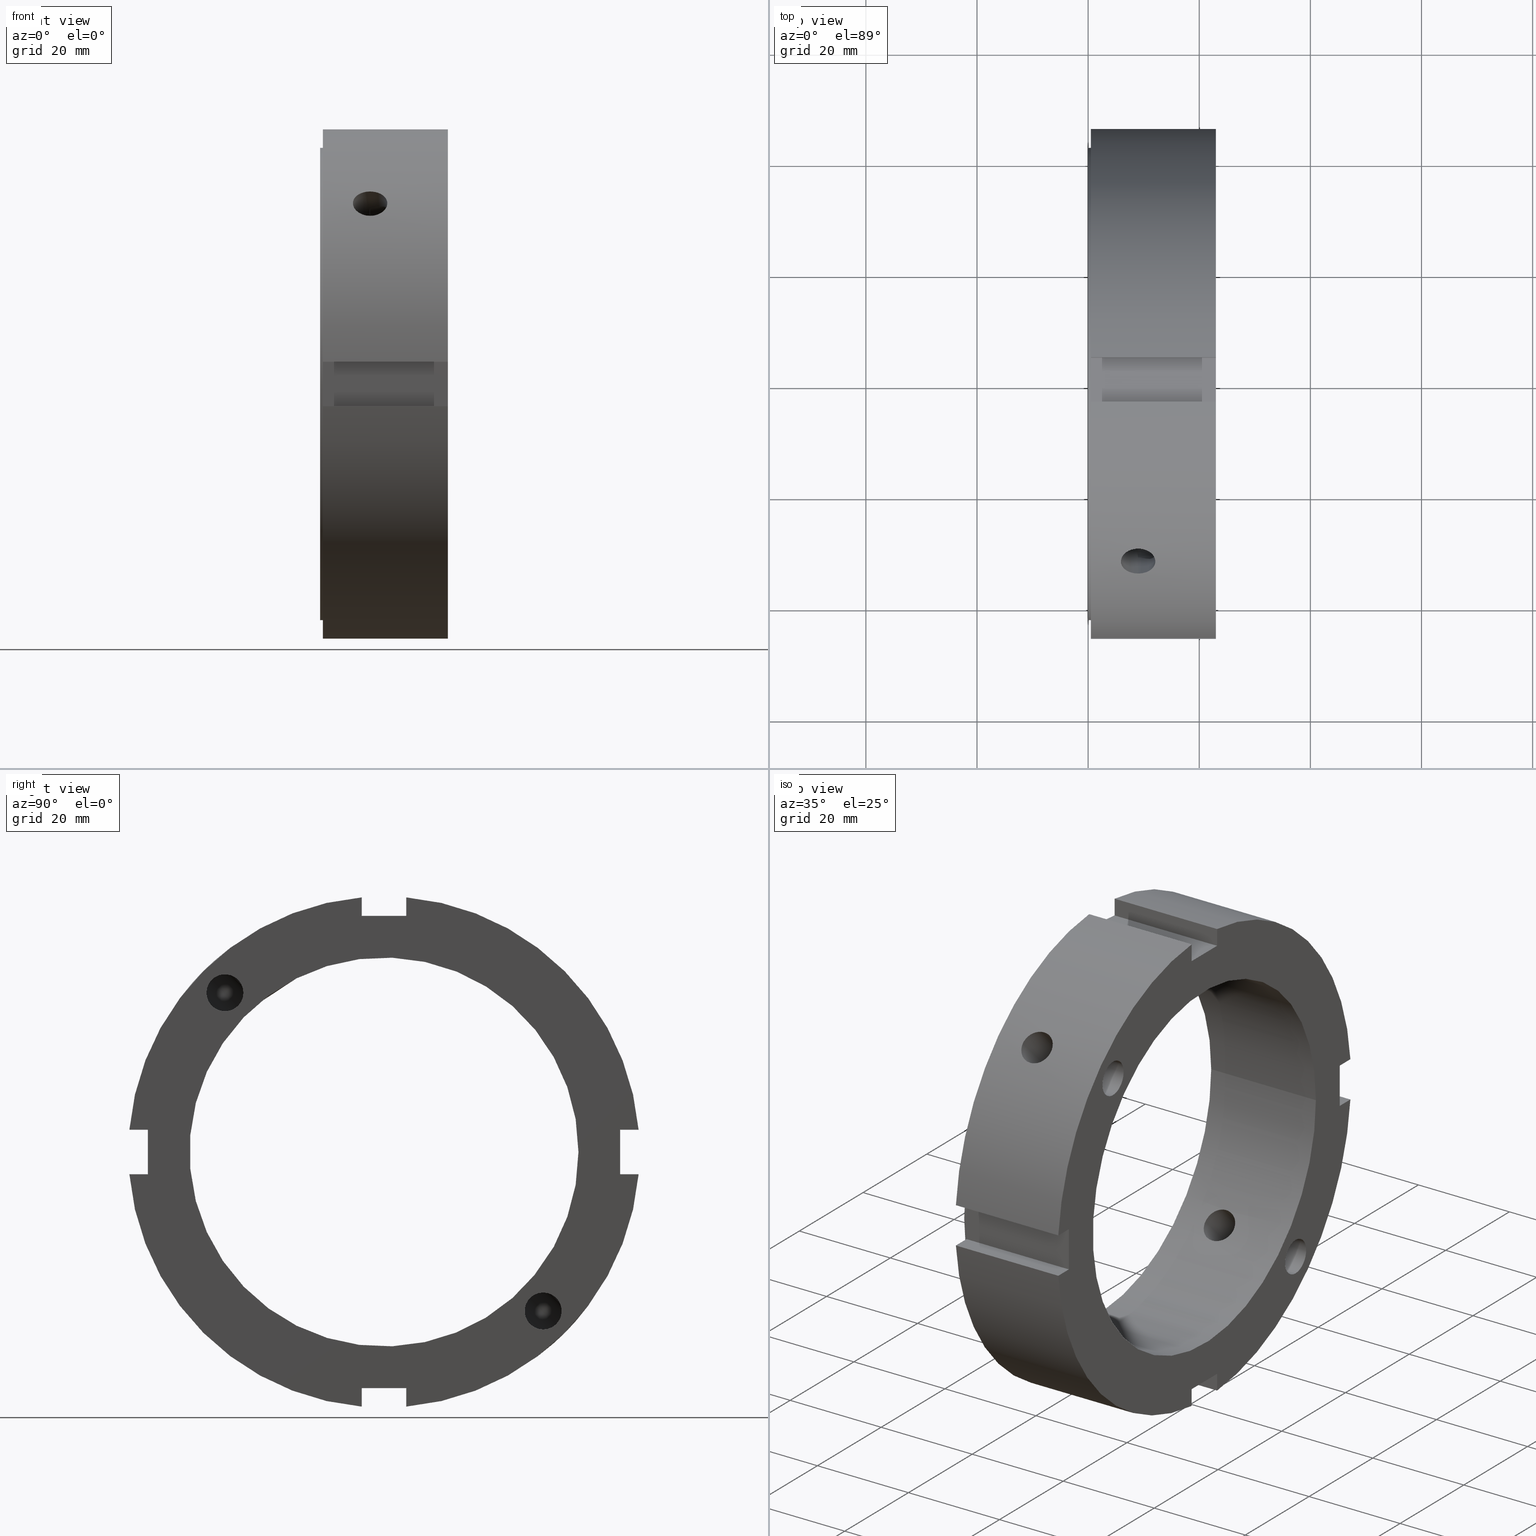
[diagram: canonical four-view strip — front | top / right | iso, engineering-drawing reading convention]
A machine part, canonical four-view strip (front | top / right | iso — engineering-drawing reading convention). The complete STEP part file that produces these views, byte-faithful:
ISO-10303-21;
HEADER;
/****************************************************************
 * Generated by software with PDElib inside                    *
 * PDElib Version v51a, created Wed 11/30/2011                  *
 * ITI Transcendata (http://www.transcendata.com/)              *
 ****************************************************************/
FILE_DESCRIPTION((''),'2;1');
FILE_NAME('C:\\Users\\sugidesign\\Documents\\Fukuda\\3Ddata\\ZMVtype\\FKD ZMV70.stp','2014-02-22T14:57:10',('sugidesign'),(''),'Autodesk Inventor LT ','Autodesk Inventor LT ','');
FILE_SCHEMA(('CONFIG_CONTROL_DESIGN'));
ENDSEC;
DATA;
#5=APPLICATION_CONTEXT('configuration controlled 3D designs of mechanical parts and assemblies');
#6=APPLICATION_PROTOCOL_DEFINITION('International Standard','ap203_configuration_controlled_3d_design_of_mechanical_parts_and_assemblies_mim_lf',2004,#5);
#7=PRODUCT_CONTEXT('',#5,'mechanical');
#8=PRODUCT('FKD ZMV70','FKD ZMV70',$,(#7));
#9=PRODUCT_RELATED_PRODUCT_CATEGORY('part',$,(#8));
#10=PRODUCT_DEFINITION_FORMATION('',$,#8);
#11=PRODUCT_DEFINITION_CONTEXT('part definition',#5,'design');
#12=PRODUCT_DEFINITION('',$,#10,#11);
#18=(NAMED_UNIT(*)PLANE_ANGLE_UNIT()SI_UNIT($,.RADIAN.));
#19=DIMENSIONAL_EXPONENTS(0.0,0.0,0.0,0.0,0.0,0.0,0.0);
#20=PLANE_ANGLE_MEASURE_WITH_UNIT(PLANE_ANGLE_MEASURE(0.0174532925),#18);
#24=(CONVERSION_BASED_UNIT('DEGREE',#20)NAMED_UNIT(#19)PLANE_ANGLE_UNIT());
#28=(NAMED_UNIT(*)SI_UNIT($,.STERADIAN.)SOLID_ANGLE_UNIT());
#32=(LENGTH_UNIT()NAMED_UNIT(*)SI_UNIT(.MILLI.,.METRE.));
#34=UNCERTAINTY_MEASURE_WITH_UNIT(LENGTH_MEASURE(0.01),#32,'DISTANCE_ACCURACY_VALUE','');
#36=(GEOMETRIC_REPRESENTATION_CONTEXT(3)GLOBAL_UNCERTAINTY_ASSIGNED_CONTEXT((#34))GLOBAL_UNIT_ASSIGNED_CONTEXT((#24,#28,#32))REPRESENTATION_CONTEXT('None','None'));
#37=AXIS2_PLACEMENT_3D('',#38,#39,#40);
#38=CARTESIAN_POINT('',(0.0,0.0,0.0));
#39=DIRECTION('',(0.0,0.0,1.0));
#40=DIRECTION('',(1.0,0.0,0.0));
#41=SHAPE_REPRESENTATION('',(#37),#36);
#42=PRODUCT_DEFINITION_SHAPE('','',#12);
#43=SHAPE_DEFINITION_REPRESENTATION(#42,#41);
#49=(NAMED_UNIT(*)PLANE_ANGLE_UNIT()SI_UNIT($,.RADIAN.));
#50=DIMENSIONAL_EXPONENTS(0.0,0.0,0.0,0.0,0.0,0.0,0.0);
#51=PLANE_ANGLE_MEASURE_WITH_UNIT(PLANE_ANGLE_MEASURE(0.0174532925),#49);
#55=(CONVERSION_BASED_UNIT('DEGREE',#51)NAMED_UNIT(#50)PLANE_ANGLE_UNIT());
#59=(NAMED_UNIT(*)SI_UNIT($,.STERADIAN.)SOLID_ANGLE_UNIT());
#63=(LENGTH_UNIT()NAMED_UNIT(*)SI_UNIT(.MILLI.,.METRE.));
#65=UNCERTAINTY_MEASURE_WITH_UNIT(LENGTH_MEASURE(0.000001),#63,'DISTANCE_ACCURACY_VALUE','');
#67=(GEOMETRIC_REPRESENTATION_CONTEXT(3)GLOBAL_UNCERTAINTY_ASSIGNED_CONTEXT((#65))GLOBAL_UNIT_ASSIGNED_CONTEXT((#55,#59,#63))REPRESENTATION_CONTEXT('','3D'));
#68=CARTESIAN_POINT('',(15.999999999999988,-28.637824638055157,28.637824638055175));
#69=DIRECTION('',(-1.0,0.0,0.0));
#70=DIRECTION('',(0.0,-1.0,0.0));
#71=AXIS2_PLACEMENT_3D('',#68,#69,#70);
#72=CYLINDRICAL_SURFACE('',#71,3.3235);
#73=CARTESIAN_POINT('',(22.999999999999989,-31.961324638055157,28.637824638055179));
#74=VERTEX_POINT('',#73);
#75=CARTESIAN_POINT('',(22.999999999999989,-28.637824638055157,28.637824638055175));
#76=DIRECTION('',(-1.0,0.0,0.0));
#77=DIRECTION('',(0.0,-1.0,0.0));
#78=AXIS2_PLACEMENT_3D('',#75,#76,#77);
#79=CIRCLE('',#78,3.3235);
#80=EDGE_CURVE('',#74,#74,#79,.T.);
#81=ORIENTED_EDGE('',*,*,#80,.F.);
#82=EDGE_LOOP('',(#81));
#83=FACE_OUTER_BOUND('',#82,.T.);
#84=CARTESIAN_POINT('',(8.999999999999988,-29.982609458797775,25.598547415441178));
#85=VERTEX_POINT('',#84);
#86=CARTESIAN_POINT('',(8.999999999999989,-25.598547415441132,29.982609458797729));
#87=VERTEX_POINT('',#86);
#88=CARTESIAN_POINT('',(8.999999999999988,-29.982609458797754,25.598547415441168));
#89=CARTESIAN_POINT('',(9.23356982528963,-29.982609458797754,25.598547415441168));
#90=CARTESIAN_POINT('',(9.440966302638056,-29.917958875376371,25.56905918546963));
#91=CARTESIAN_POINT('',(9.836840674384984,-29.727294200015592,25.496309353457725));
#92=CARTESIAN_POINT('',(10.024806661991292,-29.600187241846122,25.453131408739701));
#93=CARTESIAN_POINT('',(10.572531601479474,-29.161537086924781,25.342014600960162));
#94=CARTESIAN_POINT('',(10.911351554404817,-28.794002058344557,25.297061349046782));
#95=CARTESIAN_POINT('',(11.444926544538179,-28.085643401624122,25.343291679916039));
#96=CARTESIAN_POINT('',(11.6814189613309,-27.699731041092864,25.423422971195727));
#97=CARTESIAN_POINT('',(11.927436105658053,-27.13705601913308,25.665446365948927));
#98=CARTESIAN_POINT('',(11.991937069006076,-26.951866689541344,25.765912773536787));
#99=CARTESIAN_POINT('',(12.078237878842897,-26.601613684440082,26.002644015241923));
#100=CARTESIAN_POINT('',(12.099999999999989,-26.436565291443465,26.138945210119907));
#101=CARTESIAN_POINT('',(12.099999999999989,-26.138945210119907,26.436565291443458));
#102=CARTESIAN_POINT('',(12.078237878842899,-26.00264401524192,26.601613684440075));
#103=CARTESIAN_POINT('',(11.991937069006077,-25.765912773536783,26.951866689541333));
#104=CARTESIAN_POINT('',(11.927436105658058,-25.665446365948917,27.137056019133073));
#105=CARTESIAN_POINT('',(11.681418961330905,-25.423422971195713,27.69973104109285));
#106=CARTESIAN_POINT('',(11.444926544538186,-25.343291679916025,28.085643401624118));
#107=CARTESIAN_POINT('',(10.911351554404824,-25.297061349046764,28.794002058344546));
#108=CARTESIAN_POINT('',(10.572531601479479,-25.342014600960137,29.161537086924763));
#109=CARTESIAN_POINT('',(10.024806661991299,-25.453131408739672,29.600187241846104));
#110=CARTESIAN_POINT('',(9.83684067438498,-25.496309353457679,29.727294200015557));
#111=CARTESIAN_POINT('',(9.440966302638049,-25.569059185469584,29.917958875376335));
#112=CARTESIAN_POINT('',(9.233569825289628,-25.598547415441139,29.982609458797743));
#113=CARTESIAN_POINT('',(8.999999999999988,-25.598547415441139,29.982609458797743));
#114=B_SPLINE_CURVE_WITH_KNOTS('',3,(#88,#89,#90,#91,#92,#93,#94,#95,#96,#97,#98,#99,#100,#101,#102,#103,#104,#105,#106,#107,#108,#109,#110,#111,#112,#113),.UNSPECIFIED.,.F.,.U.,(4,2,2,2,2,2,2,2,2,2,2,2,4),(0.0,0.070070947586892,0.140141895173785,0.280283790347569,0.406553296980274,0.469688050296627,0.532822803612979,0.595957556929332,0.659092310245684,0.78536181687839,0.925503712052173,0.995574659639065,1.065645607225957),.UNSPECIFIED.);
#115=EDGE_CURVE('',#85,#87,#114,.T.);
#116=ORIENTED_EDGE('',*,*,#115,.F.);
#117=CARTESIAN_POINT('',(8.999999999999988,-31.677101860669158,27.293039817312565));
#118=VERTEX_POINT('',#117);
#119=CARTESIAN_POINT('',(8.999999999999988,-28.637824638055157,28.637824638055175));
#120=DIRECTION('',(-1.0,0.0,0.0));
#121=DIRECTION('',(0.0,-1.0,0.0));
#122=AXIS2_PLACEMENT_3D('',#119,#120,#121);
#123=CIRCLE('',#122,3.3235);
#124=EDGE_CURVE('',#85,#118,#123,.T.);
#125=ORIENTED_EDGE('',*,*,#124,.T.);
#126=CARTESIAN_POINT('',(8.999999999999988,-27.2930398173126,31.677101860669197));
#127=VERTEX_POINT('',#126);
#128=CARTESIAN_POINT('',(8.999999999999988,-27.293039817312582,31.67710186066919));
#129=CARTESIAN_POINT('',(9.233569825289628,-27.293039817312582,31.67710186066919));
#130=CARTESIAN_POINT('',(9.440966302638049,-27.357690400733986,31.706590090640741));
#131=CARTESIAN_POINT('',(9.83684067438498,-27.548355076094765,31.779339922652646));
#132=CARTESIAN_POINT('',(10.02480666199129,-27.675462034264235,31.822517867370671));
#133=CARTESIAN_POINT('',(10.572531601479476,-28.114112189185573,31.933634675150198));
#134=CARTESIAN_POINT('',(10.911351554404822,-28.481647217765786,31.978587927063561));
#135=CARTESIAN_POINT('',(11.444926544538186,-29.190005874486214,31.932357596194301));
#136=CARTESIAN_POINT('',(11.681418961330907,-29.575918235017479,31.852226304914623));
#137=CARTESIAN_POINT('',(11.92743610565806,-30.138593256977263,31.610202910161416));
#138=CARTESIAN_POINT('',(11.991937069006077,-30.323782586568996,31.509736502573546));
#139=CARTESIAN_POINT('',(12.078237878842899,-30.674035591670258,31.273005260868413));
#140=CARTESIAN_POINT('',(12.099999999999991,-30.839083984666885,31.136704065990447));
#141=CARTESIAN_POINT('',(12.099999999999987,-31.136704065990443,30.839083984666892));
#142=CARTESIAN_POINT('',(12.078237878842895,-31.273005260868402,30.674035591670261));
#143=CARTESIAN_POINT('',(11.991937069006076,-31.509736502573531,30.323782586569003));
#144=CARTESIAN_POINT('',(11.92743610565806,-31.610202910161401,30.138593256977266));
#145=CARTESIAN_POINT('',(11.681418961330907,-31.852226304914609,29.575918235017479));
#146=CARTESIAN_POINT('',(11.444926544538179,-31.932357596194286,29.190005874486214));
#147=CARTESIAN_POINT('',(10.911351554404817,-31.97858792706355,28.481647217765776));
#148=CARTESIAN_POINT('',(10.572531601479485,-31.93363467515017,28.114112189185562));
#149=CARTESIAN_POINT('',(10.024806661991303,-31.822517867370635,27.675462034264218));
#150=CARTESIAN_POINT('',(9.836840674384996,-31.779339922652611,27.548355076094744));
#151=CARTESIAN_POINT('',(9.440966302638062,-31.706590090640706,27.357690400733961));
#152=CARTESIAN_POINT('',(9.23356982528963,-31.677101860669161,27.293039817312575));
#153=CARTESIAN_POINT('',(8.999999999999988,-31.677101860669161,27.293039817312575));
#154=B_SPLINE_CURVE_WITH_KNOTS('',3,(#128,#129,#130,#131,#132,#133,#134,#135,#136,#137,#138,#139,#140,#141,#142,#143,#144,#145,#146,#147,#148,#149,#150,#151,#152,#153),.UNSPECIFIED.,.F.,.U.,(4,2,2,2,2,2,2,2,2,2,2,2,4),(-1.065645607225958,-0.995574659639066,-0.925503712052175,-0.785361816878391,-0.659092310245685,-0.595957556929333,-0.53282280361298,-0.469688050296627,-0.406553296980274,-0.280283790347569,-0.140141895173785,-0.070070947586892,0.0),.UNSPECIFIED.);
#155=EDGE_CURVE('',#127,#118,#154,.T.);
#156=ORIENTED_EDGE('',*,*,#155,.F.);
#157=CARTESIAN_POINT('',(8.999999999999988,-28.637824638055157,28.637824638055175));
#158=DIRECTION('',(-1.0,0.0,0.0));
#159=DIRECTION('',(0.0,-1.0,0.0));
#160=AXIS2_PLACEMENT_3D('',#157,#158,#159);
#161=CIRCLE('',#160,3.3235);
#162=EDGE_CURVE('',#127,#87,#161,.T.);
#163=ORIENTED_EDGE('',*,*,#162,.T.);
#164=EDGE_LOOP('',(#116,#125,#156,#163));
#165=FACE_BOUND('',#164,.T.);
#166=ADVANCED_FACE('',(#83,#165),#72,.F.);
#167=CARTESIAN_POINT('',(8.00151986633094,-28.637824638055157,28.637824638055175));
#168=DIRECTION('',(1.0,0.0,0.0));
#169=DIRECTION('',(0.0,-1.0,0.0));
#170=AXIS2_PLACEMENT_3D('',#167,#168,#169);
#171=CONICAL_SURFACE('',#170,1.66175,59.000000000000007);
#172=CARTESIAN_POINT('',(8.999999999999988,-31.677101860669154,27.293039817312565));
#173=CARTESIAN_POINT('',(8.911968600355396,-31.389746089789163,27.005684046432577));
#174=CARTESIAN_POINT('',(8.863911961712329,-31.099588200925567,26.719752577107027));
#175=CARTESIAN_POINT('',(8.863911961712329,-30.827742449964436,26.447906826145903));
#176=CARTESIAN_POINT('',(8.863911961712329,-30.551650979742252,26.171815355923719));
#177=CARTESIAN_POINT('',(8.912387462444682,-30.26859796255437,25.884535919197784));
#178=CARTESIAN_POINT('',(8.999999999999986,-29.982609458797768,25.598547415441182));
#179=B_SPLINE_CURVE_WITH_KNOTS('',3,(#172,#173,#174,#175,#176,#177,#178),.UNSPECIFIED.,.F.,.U.,(4,3,4),(-0.115334384364817,0.0,0.117135690493123),.UNSPECIFIED.);
#180=EDGE_CURVE('',#118,#85,#179,.T.);
#181=ORIENTED_EDGE('',*,*,#180,.F.);
#182=ORIENTED_EDGE('',*,*,#124,.F.);
#183=EDGE_LOOP('',(#181,#182));
#184=FACE_OUTER_BOUND('',#183,.T.);
#185=ADVANCED_FACE('',(#184),#171,.F.);
#186=CARTESIAN_POINT('',(8.00151986633094,-28.637824638055157,28.637824638055175));
#187=DIRECTION('',(1.0,0.0,0.0));
#188=DIRECTION('',(0.0,-1.0,0.0));
#189=AXIS2_PLACEMENT_3D('',#186,#187,#188);
#190=CONICAL_SURFACE('',#189,1.66175,59.000000000000007);
#191=CARTESIAN_POINT('',(8.999999999999991,-25.598547415441132,29.982609458797739));
#192=CARTESIAN_POINT('',(8.912387462444681,-25.884535919197749,30.268597962554352));
#193=CARTESIAN_POINT('',(8.863911961712317,-26.171815355923677,30.551650979742234));
#194=CARTESIAN_POINT('',(8.863911961712315,-26.719752577107023,31.099588200925584));
#195=CARTESIAN_POINT('',(8.911968600355388,-27.005684046432595,31.389746089789195));
#196=CARTESIAN_POINT('',(8.999999999999989,-27.2930398173126,31.6771018606692));
#197=B_SPLINE_CURVE_WITH_KNOTS('',3,(#191,#192,#193,#194,#195,#196),.UNSPECIFIED.,.F.,.U.,(4,2,4),(1.864951332313773,1.982087022806901,2.097421407171727),.UNSPECIFIED.);
#198=EDGE_CURVE('',#87,#127,#197,.T.);
#199=ORIENTED_EDGE('',*,*,#198,.F.);
#200=ORIENTED_EDGE('',*,*,#162,.F.);
#201=EDGE_LOOP('',(#199,#200));
#202=FACE_OUTER_BOUND('',#201,.T.);
#203=ADVANCED_FACE('',(#202),#190,.F.);
#204=CARTESIAN_POINT('',(8.999999999999988,-93.083296031028055,93.08329603102807));
#205=DIRECTION('',(0.0,-0.707106781186547,0.707106781186548));
#206=DIRECTION('',(1.0,0.0,0.0));
#207=AXIS2_PLACEMENT_3D('',#204,#205,#206);
#208=CYLINDRICAL_SURFACE('',#207,3.100000000000001);
#209=CARTESIAN_POINT('',(8.999999999999988,-34.6449969878269,30.260934944470321));
#210=VERTEX_POINT('',#209);
#211=CARTESIAN_POINT('',(8.999999999999988,-34.644996987826907,30.260934944470321));
#212=CARTESIAN_POINT('',(8.610630340540521,-34.644996987826907,30.260934944470321));
#213=CARTESIAN_POINT('',(8.195388050896174,-34.593820332374165,30.319840368114477));
#214=CARTESIAN_POINT('',(7.431647085058673,-34.384046149106645,30.557527640555264));
#215=CARTESIAN_POINT('',(7.083138380642509,-34.225251580172369,30.736103279460181));
#216=CARTESIAN_POINT('',(6.532799768199826,-33.85466852457693,31.143816553478779));
#217=CARTESIAN_POINT('',(6.294242858999243,-33.618116322715515,31.400130209370243));
#218=CARTESIAN_POINT('',(5.9778397120448,-33.092003818517476,31.954110933131489));
#219=CARTESIAN_POINT('',(5.899999999999988,-32.802237668864997,32.251586200297389));
#220=CARTESIAN_POINT('',(5.899999999999988,-32.251586200297382,32.802237668864997));
#221=CARTESIAN_POINT('',(5.977839712044797,-31.954110933131481,33.092003818517483));
#222=CARTESIAN_POINT('',(6.294242858999236,-31.400130209370239,33.618116322715522));
#223=CARTESIAN_POINT('',(6.532799768199824,-31.143816553478779,33.854668524576937));
#224=CARTESIAN_POINT('',(7.083138380642509,-30.736103279460178,34.225251580172369));
#225=CARTESIAN_POINT('',(7.431647085058669,-30.557527640555268,34.384046149106652));
#226=CARTESIAN_POINT('',(8.19538805089617,-30.319840368114473,34.593820332374172));
#227=CARTESIAN_POINT('',(8.610630340540521,-30.260934944470314,34.644996987826914));
#228=CARTESIAN_POINT('',(9.389369659459456,-30.260934944470314,34.644996987826914));
#229=CARTESIAN_POINT('',(9.804611949103807,-30.319840368114473,34.593820332374172));
#230=CARTESIAN_POINT('',(10.568352914941306,-30.557527640555268,34.384046149106652));
#231=CARTESIAN_POINT('',(10.916861619357467,-30.736103279460178,34.225251580172369));
#232=CARTESIAN_POINT('',(11.467200231800149,-31.143816553478775,33.85466852457693));
#233=CARTESIAN_POINT('',(11.705757141000744,-31.400130209370253,33.618116322715522));
#234=CARTESIAN_POINT('',(12.022160287955181,-31.954110933131492,33.092003818517483));
#235=CARTESIAN_POINT('',(12.099999999999991,-32.251586200297382,32.802237668864997));
#236=CARTESIAN_POINT('',(12.099999999999987,-32.802237668864997,32.251586200297389));
#237=CARTESIAN_POINT('',(12.022160287955177,-33.092003818517483,31.954110933131489));
#238=CARTESIAN_POINT('',(11.705757141000735,-33.618116322715522,31.400130209370243));
#239=CARTESIAN_POINT('',(11.467200231800147,-33.85466852457693,31.143816553478779));
#240=CARTESIAN_POINT('',(10.916861619357466,-34.225251580172369,30.736103279460181));
#241=CARTESIAN_POINT('',(10.568352914941304,-34.384046149106638,30.557527640555271));
#242=CARTESIAN_POINT('',(9.804611949103805,-34.593820332374165,30.31984036811448));
#243=CARTESIAN_POINT('',(9.389369659459456,-34.644996987826907,30.260934944470318));
#244=CARTESIAN_POINT('',(8.999999999999988,-34.644996987826907,30.260934944470318));
#245=B_SPLINE_CURVE_WITH_KNOTS('',3,(#211,#212,#213,#214,#215,#216,#217,#218,#219,#220,#221,#222,#223,#224,#225,#226,#227,#228,#229,#230,#231,#232,#233,#234,#235,#236,#237,#238,#239,#240,#241,#242,#243,#244),.UNSPECIFIED.,.T.,.U.,(4,2,2,2,2,2,2,2,2,2,2,2,2,2,2,2,4),(0.0,0.11681089783784,0.233621795675681,0.350432611924027,0.467243428172373,0.58405424442072,0.700865060669066,0.817675958506906,0.934486856344747,1.051297754182587,1.168108652020428,1.284919468268774,1.401730284517121,1.518541100765467,1.635351917013813,1.752162814851654,1.868973712689494),.UNSPECIFIED.);
#246=EDGE_CURVE('',#210,#210,#245,.T.);
#247=ORIENTED_EDGE('',*,*,#246,.F.);
#248=EDGE_LOOP('',(#247));
#249=FACE_OUTER_BOUND('',#248,.T.);
#250=ORIENTED_EDGE('',*,*,#180,.T.);
#251=ORIENTED_EDGE('',*,*,#115,.T.);
#252=ORIENTED_EDGE('',*,*,#198,.T.);
#253=ORIENTED_EDGE('',*,*,#155,.T.);
#254=EDGE_LOOP('',(#250,#251,#252,#253));
#255=FACE_BOUND('',#254,.T.);
#256=CARTESIAN_POINT('',(8.999999999999988,-26.843501566049479,22.459439522692882));
#257=VERTEX_POINT('',#256);
#258=CARTESIAN_POINT('',(8.999999999999988,-26.843501566049479,22.45943952269289));
#259=CARTESIAN_POINT('',(9.389462363561327,-26.843501566049479,22.45943952269289));
#260=CARTESIAN_POINT('',(9.804744290246559,-26.793525065202338,22.519596250635992));
#261=CARTESIAN_POINT('',(10.568459528347285,-26.588145612526542,22.761715961517268));
#262=CARTESIAN_POINT('',(10.916910259376685,-26.432483692662871,22.943404179325533));
#263=CARTESIAN_POINT('',(11.467151208834325,-26.067820331297106,23.356899031255828));
#264=CARTESIAN_POINT('',(11.70569422598755,-25.834419119903895,23.616281927851798));
#265=CARTESIAN_POINT('',(12.022124257730383,-25.312709378931846,24.174629826618691));
#266=CARTESIAN_POINT('',(12.099999999999989,-25.024128244108823,24.473346438949495));
#267=CARTESIAN_POINT('',(12.099999999999987,-24.473346438949495,25.02412824410883));
#268=CARTESIAN_POINT('',(12.022124257730384,-24.174629826618691,25.312709378931849));
#269=CARTESIAN_POINT('',(11.705694225987555,-23.616281927851794,25.834419119903899));
#270=CARTESIAN_POINT('',(11.467151208834325,-23.356899031255818,26.067820331297114));
#271=CARTESIAN_POINT('',(10.91691025937668,-22.943404179325533,26.432483692662878));
#272=CARTESIAN_POINT('',(10.56845952834729,-22.761715961517261,26.588145612526549));
#273=CARTESIAN_POINT('',(9.804744290246564,-22.519596250635985,26.793525065202349));
#274=CARTESIAN_POINT('',(9.389462363561327,-22.459439522692879,26.843501566049483));
#275=CARTESIAN_POINT('',(8.610537636438648,-22.459439522692879,26.843501566049483));
#276=CARTESIAN_POINT('',(8.195255709753413,-22.519596250635985,26.793525065202349));
#277=CARTESIAN_POINT('',(7.431540471652688,-22.761715961517261,26.588145612526549));
#278=CARTESIAN_POINT('',(7.083089740623294,-22.943404179325533,26.432483692662878));
#279=CARTESIAN_POINT('',(6.532848791165651,-23.356899031255818,26.067820331297114));
#280=CARTESIAN_POINT('',(6.294305774012417,-23.616281927851794,25.834419119903895));
#281=CARTESIAN_POINT('',(5.977875742269588,-24.174629826618698,25.312709378931846));
#282=CARTESIAN_POINT('',(5.899999999999988,-24.473346438949495,25.024128244108827));
#283=CARTESIAN_POINT('',(5.899999999999988,-25.024128244108823,24.473346438949498));
#284=CARTESIAN_POINT('',(5.977875742269594,-25.312709378931846,24.174629826618691));
#285=CARTESIAN_POINT('',(6.294305774012424,-25.834419119903895,23.616281927851798));
#286=CARTESIAN_POINT('',(6.532848791165651,-26.06782033129711,23.356899031255828));
#287=CARTESIAN_POINT('',(7.083089740623294,-26.432483692662871,22.943404179325533));
#288=CARTESIAN_POINT('',(7.431540471652688,-26.588145612526542,22.761715961517268));
#289=CARTESIAN_POINT('',(8.195255709753415,-26.793525065202338,22.519596250635992));
#290=CARTESIAN_POINT('',(8.610537636438648,-26.843501566049476,22.45943952269289));
#291=CARTESIAN_POINT('',(8.999999999999988,-26.843501566049476,22.45943952269289));
#292=B_SPLINE_CURVE_WITH_KNOTS('',3,(#258,#259,#260,#261,#262,#263,#264,#265,#266,#267,#268,#269,#270,#271,#272,#273,#274,#275,#276,#277,#278,#279,#280,#281,#282,#283,#284,#285,#286,#287,#288,#289,#290,#291),.UNSPECIFIED.,.T.,.U.,(4,2,2,2,2,2,2,2,2,2,2,2,2,2,2,2,4),(0.0,0.116838709068402,0.233677418136804,0.350515882951503,0.467354347766202,0.5841928125809,0.701031277395599,0.817869986464001,0.934708695532403,1.051547404600805,1.168386113669207,1.285224578483906,1.402063043298604,1.518901508113303,1.635739972928002,1.752578681996404,1.869417391064806),.UNSPECIFIED.);
#293=EDGE_CURVE('',#257,#257,#292,.T.);
#294=ORIENTED_EDGE('',*,*,#293,.F.);
#295=EDGE_LOOP('',(#294));
#296=FACE_BOUND('',#295,.T.);
#297=ADVANCED_FACE('',(#249,#255,#296),#208,.F.);
#298=CARTESIAN_POINT('',(8.00151986633094,28.637824638055172,-28.637824638055164));
#299=DIRECTION('',(1.0,0.0,0.0));
#300=DIRECTION('',(0.0,0.0,-1.0));
#301=AXIS2_PLACEMENT_3D('',#298,#299,#300);
#302=CONICAL_SURFACE('',#301,1.66175,59.000000000000007);
#303=CARTESIAN_POINT('',(8.999999999999988,25.598547415441175,-29.982609458797779));
#304=VERTEX_POINT('',#303);
#305=CARTESIAN_POINT('',(8.999999999999988,27.293039817312557,-31.677101860669161));
#306=VERTEX_POINT('',#305);
#307=CARTESIAN_POINT('',(8.999999999999988,25.598547415441178,-29.982609458797782));
#308=CARTESIAN_POINT('',(8.912387462388345,25.884535919381683,-30.268597962738287));
#309=CARTESIAN_POINT('',(8.863911961712329,26.171815355450441,-30.551650979268992));
#310=CARTESIAN_POINT('',(8.863911961712329,26.447906826145893,-30.82774244996444));
#311=CARTESIAN_POINT('',(8.863911961712329,26.71975257710702,-31.099588200925574));
#312=CARTESIAN_POINT('',(8.911968600355394,27.005684046432567,-31.389746089789167));
#313=CARTESIAN_POINT('',(8.999999999999988,27.293039817312561,-31.677101860669161));
#314=B_SPLINE_CURVE_WITH_KNOTS('',3,(#307,#308,#309,#310,#311,#312,#313),.UNSPECIFIED.,.F.,.U.,(4,3,4),(-0.117135690693911,0.0,0.115334384364818),.UNSPECIFIED.);
#315=EDGE_CURVE('',#304,#306,#314,.T.);
#316=ORIENTED_EDGE('',*,*,#315,.F.);
#317=CARTESIAN_POINT('',(8.999999999999988,28.637824638055172,-28.637824638055164));
#318=DIRECTION('',(1.0,0.0,0.0));
#319=DIRECTION('',(0.0,0.0,-1.0));
#320=AXIS2_PLACEMENT_3D('',#317,#318,#319);
#321=CIRCLE('',#320,3.3235);
#322=EDGE_CURVE('',#304,#306,#321,.T.);
#323=ORIENTED_EDGE('',*,*,#322,.T.);
#324=EDGE_LOOP('',(#316,#323));
#325=FACE_OUTER_BOUND('',#324,.T.);
#326=ADVANCED_FACE('',(#325),#302,.F.);
#327=CARTESIAN_POINT('',(8.00151986633094,28.637824638055172,-28.637824638055164));
#328=DIRECTION('',(1.0,0.0,0.0));
#329=DIRECTION('',(0.0,0.0,-1.0));
#330=AXIS2_PLACEMENT_3D('',#327,#328,#329);
#331=CONICAL_SURFACE('',#330,1.66175,59.000000000000007);
#332=CARTESIAN_POINT('',(8.999999999999988,31.677101860669193,-27.293039817312611));
#333=VERTEX_POINT('',#332);
#334=CARTESIAN_POINT('',(8.999999999999989,29.982609458797725,-25.598547415441139));
#335=VERTEX_POINT('',#334);
#336=CARTESIAN_POINT('',(8.999999999999988,31.677101860669197,-27.293039817312604));
#337=CARTESIAN_POINT('',(8.911968600355385,31.389746089789185,-27.005684046432595));
#338=CARTESIAN_POINT('',(8.863911961712315,31.099588200925577,-26.719752577107023));
#339=CARTESIAN_POINT('',(8.863911961712315,30.551650979742242,-26.171815355923687));
#340=CARTESIAN_POINT('',(8.912387462444677,30.268597962554338,-25.884535919197752));
#341=CARTESIAN_POINT('',(8.999999999999989,29.982609458797725,-25.598547415441139));
#342=B_SPLINE_CURVE_WITH_KNOTS('',3,(#336,#337,#338,#339,#340,#341),.UNSPECIFIED.,.F.,.U.,(4,2,4),(1.843478900417879,1.958813284782703,2.075948975275829),.UNSPECIFIED.);
#343=EDGE_CURVE('',#333,#335,#342,.T.);
#344=ORIENTED_EDGE('',*,*,#343,.F.);
#345=CARTESIAN_POINT('',(8.999999999999988,28.637824638055172,-28.637824638055164));
#346=DIRECTION('',(1.0,0.0,0.0));
#347=DIRECTION('',(0.0,0.0,-1.0));
#348=AXIS2_PLACEMENT_3D('',#345,#346,#347);
#349=CIRCLE('',#348,3.3235);
#350=EDGE_CURVE('',#333,#335,#349,.T.);
#351=ORIENTED_EDGE('',*,*,#350,.T.);
#352=EDGE_LOOP('',(#344,#351));
#353=FACE_OUTER_BOUND('',#352,.T.);
#354=ADVANCED_FACE('',(#353),#331,.F.);
#355=CARTESIAN_POINT('',(15.999999999999988,28.637824638055172,-28.637824638055164));
#356=DIRECTION('',(1.0,0.0,0.0));
#357=DIRECTION('',(0.0,0.0,-1.0));
#358=AXIS2_PLACEMENT_3D('',#355,#356,#357);
#359=CYLINDRICAL_SURFACE('',#358,3.3235);
#360=CARTESIAN_POINT('',(8.999999999999988,27.293039817312568,-31.677101860669165));
#361=CARTESIAN_POINT('',(9.23356982528963,27.293039817312568,-31.677101860669165));
#362=CARTESIAN_POINT('',(9.44096630263806,27.357690400733958,-31.706590090640709));
#363=CARTESIAN_POINT('',(9.836840674384996,27.54835507609474,-31.779339922652614));
#364=CARTESIAN_POINT('',(10.024806661991303,27.675462034264207,-31.822517867370639));
#365=CARTESIAN_POINT('',(10.572531601479485,28.114112189185555,-31.933634675150174));
#366=CARTESIAN_POINT('',(10.911351554404817,28.481647217765769,-31.978587927063554));
#367=CARTESIAN_POINT('',(11.44492654453818,29.190005874486204,-31.932357596194294));
#368=CARTESIAN_POINT('',(11.681418961330905,29.575918235017472,-31.852226304914616));
#369=CARTESIAN_POINT('',(11.92743610565806,30.138593256977259,-31.610202910161412));
#370=CARTESIAN_POINT('',(11.991937069006077,30.323782586568999,-31.509736502573542));
#371=CARTESIAN_POINT('',(12.078237878842899,30.674035591670254,-31.273005260868416));
#372=CARTESIAN_POINT('',(12.099999999999987,30.839083984666882,-31.136704065990447));
#373=CARTESIAN_POINT('',(12.099999999999991,31.136704065990433,-30.839083984666896));
#374=CARTESIAN_POINT('',(12.078237878842899,31.273005260868398,-30.674035591670265));
#375=CARTESIAN_POINT('',(11.991937069006077,31.509736502573539,-30.323782586569003));
#376=CARTESIAN_POINT('',(11.92743610565806,31.610202910161405,-30.13859325697727));
#377=CARTESIAN_POINT('',(11.681418961330907,31.852226304914616,-29.57591823501749));
#378=CARTESIAN_POINT('',(11.444926544538184,31.932357596194297,-29.190005874486221));
#379=CARTESIAN_POINT('',(10.911351554404822,31.978587927063558,-28.48164721776579));
#380=CARTESIAN_POINT('',(10.572531601479474,31.933634675150195,-28.114112189185576));
#381=CARTESIAN_POINT('',(10.024806661991288,31.822517867370664,-27.675462034264235));
#382=CARTESIAN_POINT('',(9.836840674384984,31.779339922652639,-27.548355076094765));
#383=CARTESIAN_POINT('',(9.440966302638053,31.706590090640738,-27.357690400733986));
#384=CARTESIAN_POINT('',(9.233569825289628,31.677101860669197,-27.293039817312604));
#385=CARTESIAN_POINT('',(8.999999999999988,31.677101860669197,-27.293039817312604));
#386=B_SPLINE_CURVE_WITH_KNOTS('',3,(#360,#361,#362,#363,#364,#365,#366,#367,#368,#369,#370,#371,#372,#373,#374,#375,#376,#377,#378,#379,#380,#381,#382,#383,#384,#385),.UNSPECIFIED.,.F.,.U.,(4,2,2,2,2,2,2,2,2,2,2,2,4),(0.0,0.070070947586892,0.140141895173785,0.280283790347569,0.406553296980275,0.469688050296627,0.53282280361298,0.595957556929333,0.659092310245685,0.785361816878391,0.925503712052175,0.995574659639066,1.065645607225958),.UNSPECIFIED.);
#387=EDGE_CURVE('',#306,#333,#386,.T.);
#388=ORIENTED_EDGE('',*,*,#387,.F.);
#389=ORIENTED_EDGE('',*,*,#322,.F.);
#390=CARTESIAN_POINT('',(8.999999999999988,29.982609458797729,-25.598547415441139));
#391=CARTESIAN_POINT('',(9.233569825289628,29.982609458797729,-25.598547415441139));
#392=CARTESIAN_POINT('',(9.440966302638055,29.917958875376335,-25.569059185469598));
#393=CARTESIAN_POINT('',(9.836840674384989,29.727294200015557,-25.496309353457697));
#394=CARTESIAN_POINT('',(10.024806661991299,29.600187241846101,-25.453131408739679));
#395=CARTESIAN_POINT('',(10.572531601479479,29.16153708692476,-25.342014600960141));
#396=CARTESIAN_POINT('',(10.911351554404822,28.794002058344542,-25.297061349046768));
#397=CARTESIAN_POINT('',(11.444926544538184,28.085643401624111,-25.343291679916028));
#398=CARTESIAN_POINT('',(11.681418961330905,27.69973104109285,-25.42342297119572));
#399=CARTESIAN_POINT('',(11.92743610565806,27.13705601913307,-25.665446365948927));
#400=CARTESIAN_POINT('',(11.991937069006077,26.95186668954133,-25.765912773536787));
#401=CARTESIAN_POINT('',(12.078237878842899,26.601613684440068,-26.002644015241923));
#402=CARTESIAN_POINT('',(12.099999999999989,26.436565291443451,-26.13894521011991));
#403=CARTESIAN_POINT('',(12.099999999999989,26.1389452101199,-26.436565291443472));
#404=CARTESIAN_POINT('',(12.078237878842899,26.002644015241923,-26.601613684440078));
#405=CARTESIAN_POINT('',(11.991937069006077,25.765912773536787,-26.95186668954134));
#406=CARTESIAN_POINT('',(11.927436105658057,25.665446365948924,-27.13705601913308));
#407=CARTESIAN_POINT('',(11.681418961330902,25.42342297119572,-27.699731041092864));
#408=CARTESIAN_POINT('',(11.444926544538179,25.343291679916035,-28.085643401624125));
#409=CARTESIAN_POINT('',(10.911351554404817,25.297061349046778,-28.79400205834456));
#410=CARTESIAN_POINT('',(10.572531601479474,25.342014600960159,-29.161537086924785));
#411=CARTESIAN_POINT('',(10.024806661991292,25.453131408739694,-29.600187241846125));
#412=CARTESIAN_POINT('',(9.836840674384984,25.496309353457718,-29.727294200015596));
#413=CARTESIAN_POINT('',(9.440966302638056,25.569059185469627,-29.917958875376375));
#414=CARTESIAN_POINT('',(9.23356982528963,25.598547415441175,-29.982609458797779));
#415=CARTESIAN_POINT('',(8.999999999999989,25.598547415441175,-29.982609458797779));
#416=B_SPLINE_CURVE_WITH_KNOTS('',3,(#390,#391,#392,#393,#394,#395,#396,#397,#398,#399,#400,#401,#402,#403,#404,#405,#406,#407,#408,#409,#410,#411,#412,#413,#414,#415),.UNSPECIFIED.,.F.,.U.,(4,2,2,2,2,2,2,2,2,2,2,2,4),(-1.065645607225957,-0.995574659639065,-0.925503712052173,-0.78536181687839,-0.659092310245684,-0.595957556929332,-0.532822803612979,-0.469688050296627,-0.406553296980274,-0.280283790347569,-0.140141895173785,-0.070070947586892,0.0),.UNSPECIFIED.);
#417=EDGE_CURVE('',#335,#304,#416,.T.);
#418=ORIENTED_EDGE('',*,*,#417,.F.);
#419=ORIENTED_EDGE('',*,*,#350,.F.);
#420=EDGE_LOOP('',(#388,#389,#418,#419));
#421=FACE_OUTER_BOUND('',#420,.T.);
#422=CARTESIAN_POINT('',(22.999999999999989,28.637824638055172,-31.96132463805516));
#423=VERTEX_POINT('',#422);
#424=CARTESIAN_POINT('',(22.999999999999989,28.637824638055172,-28.637824638055164));
#425=DIRECTION('',(-1.0,0.0,0.0));
#426=DIRECTION('',(0.0,0.0,-1.0));
#427=AXIS2_PLACEMENT_3D('',#424,#425,#426);
#428=CIRCLE('',#427,3.3235);
#429=EDGE_CURVE('',#423,#423,#428,.T.);
#430=ORIENTED_EDGE('',*,*,#429,.F.);
#431=EDGE_LOOP('',(#430));
#432=FACE_BOUND('',#431,.T.);
#433=ADVANCED_FACE('',(#421,#432),#359,.F.);
#434=CARTESIAN_POINT('',(8.999999999999988,93.083296031028055,-93.08329603102807));
#435=DIRECTION('',(0.0,-0.707106781186547,0.707106781186548));
#436=DIRECTION('',(1.0,0.0,0.0));
#437=AXIS2_PLACEMENT_3D('',#434,#435,#436);
#438=CYLINDRICAL_SURFACE('',#437,3.100000000000001);
#439=CARTESIAN_POINT('',(8.999999999999988,30.260934944470314,-34.644996987826914));
#440=VERTEX_POINT('',#439);
#441=CARTESIAN_POINT('',(8.999999999999989,30.260934944470307,-34.644996987826914));
#442=CARTESIAN_POINT('',(9.389369659459456,30.260934944470307,-34.644996987826914));
#443=CARTESIAN_POINT('',(9.804611949103807,30.319840368114473,-34.593820332374172));
#444=CARTESIAN_POINT('',(10.568352914941306,30.557527640555268,-34.384046149106652));
#445=CARTESIAN_POINT('',(10.916861619357467,30.736103279460178,-34.225251580172369));
#446=CARTESIAN_POINT('',(11.467200231800149,31.143816553478779,-33.854668524576937));
#447=CARTESIAN_POINT('',(11.705757141000738,31.400130209370239,-33.618116322715522));
#448=CARTESIAN_POINT('',(12.022160287955179,31.954110933131481,-33.092003818517483));
#449=CARTESIAN_POINT('',(12.099999999999991,32.251586200297382,-32.802237668864997));
#450=CARTESIAN_POINT('',(12.099999999999987,32.802237668864997,-32.251586200297389));
#451=CARTESIAN_POINT('',(12.022160287955177,33.092003818517476,-31.954110933131489));
#452=CARTESIAN_POINT('',(11.705757141000735,33.618116322715515,-31.400130209370243));
#453=CARTESIAN_POINT('',(11.467200231800149,33.85466852457693,-31.143816553478779));
#454=CARTESIAN_POINT('',(10.916861619357467,34.225251580172369,-30.736103279460181));
#455=CARTESIAN_POINT('',(10.568352914941304,34.384046149106638,-30.557527640555271));
#456=CARTESIAN_POINT('',(9.804611949103805,34.593820332374165,-30.31984036811448));
#457=CARTESIAN_POINT('',(9.389369659459456,34.644996987826914,-30.260934944470318));
#458=CARTESIAN_POINT('',(8.610630340540521,34.644996987826914,-30.260934944470318));
#459=CARTESIAN_POINT('',(8.195388050896174,34.593820332374165,-30.31984036811448));
#460=CARTESIAN_POINT('',(7.431647085058674,34.384046149106645,-30.557527640555268));
#461=CARTESIAN_POINT('',(7.083138380642509,34.225251580172369,-30.736103279460181));
#462=CARTESIAN_POINT('',(6.532799768199825,33.85466852457693,-31.143816553478779));
#463=CARTESIAN_POINT('',(6.294242858999239,33.618116322715515,-31.400130209370246));
#464=CARTESIAN_POINT('',(5.977839712044798,33.092003818517483,-31.954110933131489));
#465=CARTESIAN_POINT('',(5.899999999999988,32.802237668864997,-32.251586200297389));
#466=CARTESIAN_POINT('',(5.899999999999988,32.251586200297382,-32.802237668864997));
#467=CARTESIAN_POINT('',(5.977839712044794,31.954110933131492,-33.092003818517483));
#468=CARTESIAN_POINT('',(6.294242858999234,31.400130209370246,-33.618116322715522));
#469=CARTESIAN_POINT('',(6.532799768199824,31.143816553478779,-33.854668524576937));
#470=CARTESIAN_POINT('',(7.083138380642509,30.736103279460178,-34.225251580172369));
#471=CARTESIAN_POINT('',(7.431647085058669,30.557527640555268,-34.384046149106652));
#472=CARTESIAN_POINT('',(8.19538805089617,30.319840368114473,-34.593820332374172));
#473=CARTESIAN_POINT('',(8.610630340540521,30.260934944470307,-34.644996987826914));
#474=CARTESIAN_POINT('',(8.999999999999989,30.260934944470307,-34.644996987826914));
#475=B_SPLINE_CURVE_WITH_KNOTS('',3,(#441,#442,#443,#444,#445,#446,#447,#448,#449,#450,#451,#452,#453,#454,#455,#456,#457,#458,#459,#460,#461,#462,#463,#464,#465,#466,#467,#468,#469,#470,#471,#472,#473,#474),.UNSPECIFIED.,.T.,.U.,(4,2,2,2,2,2,2,2,2,2,2,2,2,2,2,2,4),(0.0,0.11681089783784,0.233621795675681,0.350432611924027,0.467243428172374,0.58405424442072,0.700865060669066,0.817675958506907,0.934486856344747,1.051297754182587,1.168108652020428,1.284919468268774,1.401730284517121,1.518541100765467,1.635351917013813,1.752162814851654,1.868973712689494),.UNSPECIFIED.);
#476=EDGE_CURVE('',#440,#440,#475,.T.);
#477=ORIENTED_EDGE('',*,*,#476,.F.);
#478=EDGE_LOOP('',(#477));
#479=FACE_OUTER_BOUND('',#478,.T.);
#480=ORIENTED_EDGE('',*,*,#315,.T.);
#481=ORIENTED_EDGE('',*,*,#387,.T.);
#482=ORIENTED_EDGE('',*,*,#343,.T.);
#483=ORIENTED_EDGE('',*,*,#417,.T.);
#484=EDGE_LOOP('',(#480,#481,#482,#483));
#485=FACE_BOUND('',#484,.T.);
#486=CARTESIAN_POINT('',(8.999999999999988,22.459439522692879,-26.843501566049483));
#487=VERTEX_POINT('',#486);
#488=CARTESIAN_POINT('',(8.999999999999988,22.459439522692879,-26.843501566049483));
#489=CARTESIAN_POINT('',(8.610537636438648,22.459439522692879,-26.843501566049483));
#490=CARTESIAN_POINT('',(8.195255709753413,22.519596250635985,-26.793525065202349));
#491=CARTESIAN_POINT('',(7.431540471652688,22.761715961517261,-26.588145612526549));
#492=CARTESIAN_POINT('',(7.083089740623294,22.943404179325533,-26.432483692662878));
#493=CARTESIAN_POINT('',(6.532848791165651,23.356899031255818,-26.067820331297114));
#494=CARTESIAN_POINT('',(6.294305774012422,23.616281927851791,-25.834419119903899));
#495=CARTESIAN_POINT('',(5.977875742269591,24.174629826618691,-25.312709378931849));
#496=CARTESIAN_POINT('',(5.899999999999988,24.473346438949495,-25.024128244108827));
#497=CARTESIAN_POINT('',(5.899999999999988,25.024128244108823,-24.473346438949498));
#498=CARTESIAN_POINT('',(5.977875742269594,25.312709378931846,-24.174629826618691));
#499=CARTESIAN_POINT('',(6.294305774012424,25.834419119903895,-23.616281927851798));
#500=CARTESIAN_POINT('',(6.532848791165651,26.06782033129711,-23.356899031255828));
#501=CARTESIAN_POINT('',(7.083089740623293,26.432483692662871,-22.943404179325533));
#502=CARTESIAN_POINT('',(7.43154047165269,26.588145612526542,-22.761715961517268));
#503=CARTESIAN_POINT('',(8.195255709753418,26.793525065202338,-22.519596250635992));
#504=CARTESIAN_POINT('',(8.610537636438647,26.843501566049479,-22.459439522692882));
#505=CARTESIAN_POINT('',(9.389462363561329,26.843501566049479,-22.459439522692882));
#506=CARTESIAN_POINT('',(9.804744290246557,26.793525065202338,-22.519596250635992));
#507=CARTESIAN_POINT('',(10.568459528347285,26.588145612526542,-22.761715961517268));
#508=CARTESIAN_POINT('',(10.916910259376685,26.432483692662878,-22.943404179325533));
#509=CARTESIAN_POINT('',(11.467151208834327,26.06782033129711,-23.356899031255828));
#510=CARTESIAN_POINT('',(11.705694225987553,25.834419119903895,-23.616281927851798));
#511=CARTESIAN_POINT('',(12.022124257730383,25.312709378931846,-24.174629826618691));
#512=CARTESIAN_POINT('',(12.099999999999991,25.024128244108823,-24.473346438949498));
#513=CARTESIAN_POINT('',(12.099999999999987,24.473346438949495,-25.024128244108823));
#514=CARTESIAN_POINT('',(12.022124257730386,24.174629826618698,-25.312709378931846));
#515=CARTESIAN_POINT('',(11.705694225987557,23.616281927851794,-25.834419119903895));
#516=CARTESIAN_POINT('',(11.467151208834325,23.356899031255818,-26.067820331297114));
#517=CARTESIAN_POINT('',(10.91691025937668,22.943404179325533,-26.432483692662878));
#518=CARTESIAN_POINT('',(10.568459528347285,22.761715961517261,-26.588145612526549));
#519=CARTESIAN_POINT('',(9.804744290246557,22.519596250635985,-26.793525065202349));
#520=CARTESIAN_POINT('',(9.389462363561329,22.459439522692879,-26.843501566049483));
#521=CARTESIAN_POINT('',(8.999999999999989,22.459439522692879,-26.843501566049483));
#522=B_SPLINE_CURVE_WITH_KNOTS('',3,(#488,#489,#490,#491,#492,#493,#494,#495,#496,#497,#498,#499,#500,#501,#502,#503,#504,#505,#506,#507,#508,#509,#510,#511,#512,#513,#514,#515,#516,#517,#518,#519,#520,#521),.UNSPECIFIED.,.T.,.U.,(4,2,2,2,2,2,2,2,2,2,2,2,2,2,2,2,4),(0.0,0.116838709068402,0.233677418136804,0.350515882951503,0.467354347766201,0.5841928125809,0.701031277395599,0.817869986464001,0.934708695532403,1.051547404600805,1.168386113669207,1.285224578483906,1.402063043298605,1.518901508113304,1.635739972928002,1.752578681996404,1.869417391064806),.UNSPECIFIED.);
#523=EDGE_CURVE('',#487,#487,#522,.T.);
#524=ORIENTED_EDGE('',*,*,#523,.F.);
#525=EDGE_LOOP('',(#524));
#526=FACE_BOUND('',#525,.T.);
#527=ADVANCED_FACE('',(#479,#485,#526),#438,.F.);
#528=CARTESIAN_POINT('',(22.999999999999989,-4.000000000000005,-42.500000000000007));
#529=DIRECTION('',(0.0,-1.0,0.0));
#530=DIRECTION('',(-1.0,0.0,0.0));
#531=AXIS2_PLACEMENT_3D('',#528,#529,#530);
#532=PLANE('',#531);
#533=CARTESIAN_POINT('',(0.499999999999989,-4.000000000000005,-42.500000000000007));
#534=VERTEX_POINT('',#533);
#535=CARTESIAN_POINT('',(0.499999999999989,-4.000000000000006,-45.825756949558411));
#536=VERTEX_POINT('',#535);
#537=CARTESIAN_POINT('',(0.499999999999989,-4.000000000000003,-42.500000000000007));
#538=DIRECTION('',(0.0,0.0,-1.0));
#539=VECTOR('',#538,3.325756949558404);
#540=LINE('',#537,#539);
#541=EDGE_CURVE('',#534,#536,#540,.T.);
#542=ORIENTED_EDGE('',*,*,#541,.F.);
#543=CARTESIAN_POINT('',(22.999999999999989,-4.000000000000005,-42.500000000000007));
#544=VERTEX_POINT('',#543);
#545=CARTESIAN_POINT('',(22.999999999999989,-4.000000000000005,-42.500000000000007));
#546=DIRECTION('',(-1.0,0.0,0.0));
#547=VECTOR('',#546,22.5);
#548=LINE('',#545,#547);
#549=EDGE_CURVE('',#544,#534,#548,.T.);
#550=ORIENTED_EDGE('',*,*,#549,.F.);
#551=CARTESIAN_POINT('',(22.999999999999989,-4.000000000000006,-45.825756949558411));
#552=VERTEX_POINT('',#551);
#553=CARTESIAN_POINT('',(22.999999999999989,-4.000000000000004,-45.825756949558411));
#554=DIRECTION('',(0.0,0.0,1.0));
#555=VECTOR('',#554,3.325756949558404);
#556=LINE('',#553,#555);
#557=EDGE_CURVE('',#552,#544,#556,.T.);
#558=ORIENTED_EDGE('',*,*,#557,.F.);
#559=CARTESIAN_POINT('',(0.499999999999989,-4.000000000000006,-45.825756949558411));
#560=DIRECTION('',(1.0,0.0,0.0));
#561=VECTOR('',#560,22.5);
#562=LINE('',#559,#561);
#563=EDGE_CURVE('',#536,#552,#562,.T.);
#564=ORIENTED_EDGE('',*,*,#563,.F.);
#565=EDGE_LOOP('',(#542,#550,#558,#564));
#566=FACE_OUTER_BOUND('',#565,.T.);
#567=ADVANCED_FACE('',(#566),#532,.F.);
#568=CARTESIAN_POINT('',(22.999999999999989,3.99999999999999,-46.000000000000007));
#569=DIRECTION('',(0.0,1.0,0.0));
#570=DIRECTION('',(1.0,0.0,0.0));
#571=AXIS2_PLACEMENT_3D('',#568,#569,#570);
#572=PLANE('',#571);
#573=CARTESIAN_POINT('',(0.499999999999989,3.99999999999999,-45.825756949558411));
#574=VERTEX_POINT('',#573);
#575=CARTESIAN_POINT('',(0.499999999999989,3.99999999999999,-42.500000000000007));
#576=VERTEX_POINT('',#575);
#577=CARTESIAN_POINT('',(0.499999999999989,3.999999999999986,-45.825756949558411));
#578=DIRECTION('',(0.0,0.0,1.0));
#579=VECTOR('',#578,3.325756949558397);
#580=LINE('',#577,#579);
#581=EDGE_CURVE('',#574,#576,#580,.T.);
#582=ORIENTED_EDGE('',*,*,#581,.F.);
#583=CARTESIAN_POINT('',(22.999999999999989,3.99999999999999,-45.825756949558411));
#584=VERTEX_POINT('',#583);
#585=CARTESIAN_POINT('',(22.999999999999989,3.99999999999999,-45.825756949558411));
#586=DIRECTION('',(-1.0,0.0,0.0));
#587=VECTOR('',#586,22.5);
#588=LINE('',#585,#587);
#589=EDGE_CURVE('',#584,#574,#588,.T.);
#590=ORIENTED_EDGE('',*,*,#589,.F.);
#591=CARTESIAN_POINT('',(22.999999999999989,3.99999999999999,-42.500000000000007));
#592=VERTEX_POINT('',#591);
#593=CARTESIAN_POINT('',(22.999999999999989,3.999999999999989,-42.500000000000014));
#594=DIRECTION('',(0.0,0.0,-1.0));
#595=VECTOR('',#594,3.325756949558397);
#596=LINE('',#593,#595);
#597=EDGE_CURVE('',#592,#584,#596,.T.);
#598=ORIENTED_EDGE('',*,*,#597,.F.);
#599=CARTESIAN_POINT('',(22.999999999999989,3.99999999999999,-42.500000000000007));
#600=DIRECTION('',(-1.0,0.0,0.0));
#601=VECTOR('',#600,22.5);
#602=LINE('',#599,#601);
#603=EDGE_CURVE('',#592,#576,#602,.T.);
#604=ORIENTED_EDGE('',*,*,#603,.T.);
#605=EDGE_LOOP('',(#582,#590,#598,#604));
#606=FACE_OUTER_BOUND('',#605,.T.);
#607=ADVANCED_FACE('',(#606),#572,.F.);
#608=CARTESIAN_POINT('',(22.999999999999989,3.99999999999999,-42.500000000000007));
#609=DIRECTION('',(0.0,0.0,1.0));
#610=DIRECTION('',(0.0,-1.0,0.0));
#611=AXIS2_PLACEMENT_3D('',#608,#609,#610);
#612=PLANE('',#611);
#613=CARTESIAN_POINT('',(0.499999999999989,-7.771561E-015,-42.5));
#614=VERTEX_POINT('',#613);
#615=CARTESIAN_POINT('',(0.499999999999989,3.999999999999993,-42.500000000000007));
#616=DIRECTION('',(0.0,-1.0,0.0));
#617=VECTOR('',#616,4.0);
#618=LINE('',#615,#617);
#619=EDGE_CURVE('',#576,#614,#618,.T.);
#620=ORIENTED_EDGE('',*,*,#619,.F.);
#621=ORIENTED_EDGE('',*,*,#603,.F.);
#622=CARTESIAN_POINT('',(22.999999999999989,-4.000000000000007,-42.500000000000007));
#623=DIRECTION('',(0.0,1.0,0.0));
#624=VECTOR('',#623,8.0);
#625=LINE('',#622,#624);
#626=EDGE_CURVE('',#544,#592,#625,.T.);
#627=ORIENTED_EDGE('',*,*,#626,.F.);
#628=ORIENTED_EDGE('',*,*,#549,.T.);
#629=CARTESIAN_POINT('',(0.499999999999989,-7.105427E-015,-42.500000000000007));
#630=DIRECTION('',(0.0,-1.0,0.0));
#631=VECTOR('',#630,4.0);
#632=LINE('',#629,#631);
#633=EDGE_CURVE('',#614,#534,#632,.T.);
#634=ORIENTED_EDGE('',*,*,#633,.F.);
#635=EDGE_LOOP('',(#620,#621,#627,#628,#634));
#636=FACE_OUTER_BOUND('',#635,.T.);
#637=ADVANCED_FACE('',(#636),#612,.F.);
#638=CARTESIAN_POINT('',(22.999999999999989,-42.500000000000007,4.000000000000004));
#639=DIRECTION('',(0.0,0.0,1.0));
#640=DIRECTION('',(-1.0,0.0,0.0));
#641=AXIS2_PLACEMENT_3D('',#638,#639,#640);
#642=PLANE('',#641);
#643=CARTESIAN_POINT('',(0.499999999999989,-42.500000000000007,4.000000000000004));
#644=VERTEX_POINT('',#643);
#645=CARTESIAN_POINT('',(0.499999999999989,-45.825756949558411,4.000000000000004));
#646=VERTEX_POINT('',#645);
#647=CARTESIAN_POINT('',(0.499999999999989,-42.500000000000014,4.000000000000004));
#648=DIRECTION('',(0.0,-1.0,0.0));
#649=VECTOR('',#648,3.325756949558397);
#650=LINE('',#647,#649);
#651=EDGE_CURVE('',#644,#646,#650,.T.);
#652=ORIENTED_EDGE('',*,*,#651,.F.);
#653=CARTESIAN_POINT('',(22.999999999999989,-42.500000000000007,4.000000000000004));
#654=VERTEX_POINT('',#653);
#655=CARTESIAN_POINT('',(22.999999999999989,-42.500000000000007,4.000000000000004));
#656=DIRECTION('',(-1.0,0.0,0.0));
#657=VECTOR('',#656,22.5);
#658=LINE('',#655,#657);
#659=EDGE_CURVE('',#654,#644,#658,.T.);
#660=ORIENTED_EDGE('',*,*,#659,.F.);
#661=CARTESIAN_POINT('',(22.999999999999989,-45.825756949558411,4.000000000000004));
#662=VERTEX_POINT('',#661);
#663=CARTESIAN_POINT('',(22.999999999999989,-45.825756949558411,4.000000000000004));
#664=DIRECTION('',(0.0,1.0,0.0));
#665=VECTOR('',#664,3.325756949558397);
#666=LINE('',#663,#665);
#667=EDGE_CURVE('',#662,#654,#666,.T.);
#668=ORIENTED_EDGE('',*,*,#667,.F.);
#669=CARTESIAN_POINT('',(0.499999999999989,-45.825756949558411,4.000000000000004));
#670=DIRECTION('',(1.0,0.0,0.0));
#671=VECTOR('',#670,22.5);
#672=LINE('',#669,#671);
#673=EDGE_CURVE('',#646,#662,#672,.T.);
#674=ORIENTED_EDGE('',*,*,#673,.F.);
#675=EDGE_LOOP('',(#652,#660,#668,#674));
#676=FACE_OUTER_BOUND('',#675,.T.);
#677=ADVANCED_FACE('',(#676),#642,.F.);
#678=CARTESIAN_POINT('',(22.999999999999989,-46.000000000000007,-3.999999999999993));
#679=DIRECTION('',(0.0,0.0,-1.0));
#680=DIRECTION('',(1.0,0.0,0.0));
#681=AXIS2_PLACEMENT_3D('',#678,#679,#680);
#682=PLANE('',#681);
#683=CARTESIAN_POINT('',(0.499999999999989,-45.825756949558411,-3.999999999999993));
#684=VERTEX_POINT('',#683);
#685=CARTESIAN_POINT('',(0.499999999999989,-42.500000000000007,-3.999999999999993));
#686=VERTEX_POINT('',#685);
#687=CARTESIAN_POINT('',(0.499999999999989,-45.825756949558404,-3.999999999999993));
#688=DIRECTION('',(0.0,1.0,0.0));
#689=VECTOR('',#688,3.325756949558397);
#690=LINE('',#687,#689);
#691=EDGE_CURVE('',#684,#686,#690,.T.);
#692=ORIENTED_EDGE('',*,*,#691,.F.);
#693=CARTESIAN_POINT('',(22.999999999999989,-45.825756949558411,-3.999999999999993));
#694=VERTEX_POINT('',#693);
#695=CARTESIAN_POINT('',(22.999999999999989,-45.825756949558411,-3.999999999999993));
#696=DIRECTION('',(-1.0,0.0,0.0));
#697=VECTOR('',#696,22.5);
#698=LINE('',#695,#697);
#699=EDGE_CURVE('',#694,#684,#698,.T.);
#700=ORIENTED_EDGE('',*,*,#699,.F.);
#701=CARTESIAN_POINT('',(22.999999999999989,-42.500000000000007,-3.999999999999993));
#702=VERTEX_POINT('',#701);
#703=CARTESIAN_POINT('',(22.999999999999989,-42.500000000000007,-3.999999999999993));
#704=DIRECTION('',(0.0,-1.0,0.0));
#705=VECTOR('',#704,3.325756949558397);
#706=LINE('',#703,#705);
#707=EDGE_CURVE('',#702,#694,#706,.T.);
#708=ORIENTED_EDGE('',*,*,#707,.F.);
#709=CARTESIAN_POINT('',(22.999999999999989,-42.500000000000007,-3.999999999999993));
#710=DIRECTION('',(-1.0,0.0,0.0));
#711=VECTOR('',#710,22.5);
#712=LINE('',#709,#711);
#713=EDGE_CURVE('',#702,#686,#712,.T.);
#714=ORIENTED_EDGE('',*,*,#713,.T.);
#715=EDGE_LOOP('',(#692,#700,#708,#714));
#716=FACE_OUTER_BOUND('',#715,.T.);
#717=ADVANCED_FACE('',(#716),#682,.F.);
#718=CARTESIAN_POINT('',(22.999999999999989,-42.500000000000007,-3.999999999999993));
#719=DIRECTION('',(0.0,1.0,0.0));
#720=DIRECTION('',(0.0,0.0,1.0));
#721=AXIS2_PLACEMENT_3D('',#718,#719,#720);
#722=PLANE('',#721);
#723=CARTESIAN_POINT('',(0.499999999999989,-42.5,5.273559E-015));
#724=VERTEX_POINT('',#723);
#725=CARTESIAN_POINT('',(0.499999999999989,-42.5,-3.999999999999992));
#726=DIRECTION('',(0.0,0.0,1.0));
#727=VECTOR('',#726,3.999999999999997);
#728=LINE('',#725,#727);
#729=EDGE_CURVE('',#686,#724,#728,.T.);
#730=ORIENTED_EDGE('',*,*,#729,.F.);
#731=ORIENTED_EDGE('',*,*,#713,.F.);
#732=CARTESIAN_POINT('',(22.999999999999989,-42.5,4.000000000000004));
#733=DIRECTION('',(0.0,0.0,-1.0));
#734=VECTOR('',#733,7.999999999999996);
#735=LINE('',#732,#734);
#736=EDGE_CURVE('',#654,#702,#735,.T.);
#737=ORIENTED_EDGE('',*,*,#736,.F.);
#738=ORIENTED_EDGE('',*,*,#659,.T.);
#739=CARTESIAN_POINT('',(0.499999999999989,-42.5,5.329071E-015));
#740=DIRECTION('',(0.0,0.0,1.0));
#741=VECTOR('',#740,3.999999999999998);
#742=LINE('',#739,#741);
#743=EDGE_CURVE('',#724,#644,#742,.T.);
#744=ORIENTED_EDGE('',*,*,#743,.F.);
#745=EDGE_LOOP('',(#730,#731,#737,#738,#744));
#746=FACE_OUTER_BOUND('',#745,.T.);
#747=ADVANCED_FACE('',(#746),#722,.F.);
#748=CARTESIAN_POINT('',(22.999999999999989,4.000000000000001,42.500000000000007));
#749=DIRECTION('',(0.0,1.0,0.0));
#750=DIRECTION('',(-1.0,0.0,0.0));
#751=AXIS2_PLACEMENT_3D('',#748,#749,#750);
#752=PLANE('',#751);
#753=CARTESIAN_POINT('',(0.499999999999989,4.000000000000001,42.500000000000007));
#754=VERTEX_POINT('',#753);
#755=CARTESIAN_POINT('',(0.499999999999989,4.000000000000001,45.825756949558411));
#756=VERTEX_POINT('',#755);
#757=CARTESIAN_POINT('',(0.499999999999989,4.000000000000004,42.500000000000007));
#758=DIRECTION('',(0.0,0.0,1.0));
#759=VECTOR('',#758,3.325756949558404);
#760=LINE('',#757,#759);
#761=EDGE_CURVE('',#754,#756,#760,.T.);
#762=ORIENTED_EDGE('',*,*,#761,.F.);
#763=CARTESIAN_POINT('',(22.999999999999989,4.000000000000001,42.500000000000007));
#764=VERTEX_POINT('',#763);
#765=CARTESIAN_POINT('',(22.999999999999989,4.000000000000001,42.500000000000007));
#766=DIRECTION('',(-1.0,0.0,0.0));
#767=VECTOR('',#766,22.5);
#768=LINE('',#765,#767);
#769=EDGE_CURVE('',#764,#754,#768,.T.);
#770=ORIENTED_EDGE('',*,*,#769,.F.);
#771=CARTESIAN_POINT('',(22.999999999999989,4.000000000000001,45.825756949558411));
#772=VERTEX_POINT('',#771);
#773=CARTESIAN_POINT('',(22.999999999999989,4.000000000000001,45.825756949558411));
#774=DIRECTION('',(0.0,0.0,-1.0));
#775=VECTOR('',#774,3.325756949558404);
#776=LINE('',#773,#775);
#777=EDGE_CURVE('',#772,#764,#776,.T.);
#778=ORIENTED_EDGE('',*,*,#777,.F.);
#779=CARTESIAN_POINT('',(0.499999999999989,4.000000000000001,45.825756949558411));
#780=DIRECTION('',(1.0,0.0,0.0));
#781=VECTOR('',#780,22.5);
#782=LINE('',#779,#781);
#783=EDGE_CURVE('',#756,#772,#782,.T.);
#784=ORIENTED_EDGE('',*,*,#783,.F.);
#785=EDGE_LOOP('',(#762,#770,#778,#784));
#786=FACE_OUTER_BOUND('',#785,.T.);
#787=ADVANCED_FACE('',(#786),#752,.F.);
#788=CARTESIAN_POINT('',(22.999999999999989,-3.999999999999995,46.000000000000007));
#789=DIRECTION('',(0.0,-1.0,0.0));
#790=DIRECTION('',(1.0,0.0,0.0));
#791=AXIS2_PLACEMENT_3D('',#788,#789,#790);
#792=PLANE('',#791);
#793=CARTESIAN_POINT('',(0.499999999999989,-3.999999999999995,45.825756949558411));
#794=VERTEX_POINT('',#793);
#795=CARTESIAN_POINT('',(0.499999999999989,-3.999999999999995,42.500000000000007));
#796=VERTEX_POINT('',#795);
#797=CARTESIAN_POINT('',(0.499999999999989,-3.999999999999993,45.825756949558411));
#798=DIRECTION('',(0.0,0.0,-1.0));
#799=VECTOR('',#798,3.325756949558397);
#800=LINE('',#797,#799);
#801=EDGE_CURVE('',#794,#796,#800,.T.);
#802=ORIENTED_EDGE('',*,*,#801,.F.);
#803=CARTESIAN_POINT('',(22.999999999999989,-3.999999999999995,45.825756949558411));
#804=VERTEX_POINT('',#803);
#805=CARTESIAN_POINT('',(22.999999999999989,-3.999999999999996,45.825756949558411));
#806=DIRECTION('',(-1.0,0.0,0.0));
#807=VECTOR('',#806,22.5);
#808=LINE('',#805,#807);
#809=EDGE_CURVE('',#804,#794,#808,.T.);
#810=ORIENTED_EDGE('',*,*,#809,.F.);
#811=CARTESIAN_POINT('',(22.999999999999989,-3.999999999999995,42.500000000000007));
#812=VERTEX_POINT('',#811);
#813=CARTESIAN_POINT('',(22.999999999999989,-3.999999999999993,42.500000000000014));
#814=DIRECTION('',(0.0,0.0,1.0));
#815=VECTOR('',#814,3.325756949558397);
#816=LINE('',#813,#815);
#817=EDGE_CURVE('',#812,#804,#816,.T.);
#818=ORIENTED_EDGE('',*,*,#817,.F.);
#819=CARTESIAN_POINT('',(22.999999999999989,-3.999999999999995,42.500000000000007));
#820=DIRECTION('',(-1.0,0.0,0.0));
#821=VECTOR('',#820,22.5);
#822=LINE('',#819,#821);
#823=EDGE_CURVE('',#812,#796,#822,.T.);
#824=ORIENTED_EDGE('',*,*,#823,.T.);
#825=EDGE_LOOP('',(#802,#810,#818,#824));
#826=FACE_OUTER_BOUND('',#825,.T.);
#827=ADVANCED_FACE('',(#826),#792,.F.);
#828=CARTESIAN_POINT('',(22.999999999999989,-3.999999999999995,42.500000000000007));
#829=DIRECTION('',(0.0,0.0,-1.0));
#830=DIRECTION('',(0.0,1.0,0.0));
#831=AXIS2_PLACEMENT_3D('',#828,#829,#830);
#832=PLANE('',#831);
#833=CARTESIAN_POINT('',(0.499999999999989,2.636780E-015,42.5));
#834=VERTEX_POINT('',#833);
#835=CARTESIAN_POINT('',(0.499999999999989,-3.999999999999993,42.500000000000007));
#836=DIRECTION('',(0.0,1.0,0.0));
#837=VECTOR('',#836,4.0);
#838=LINE('',#835,#837);
#839=EDGE_CURVE('',#796,#834,#838,.T.);
#840=ORIENTED_EDGE('',*,*,#839,.F.);
#841=ORIENTED_EDGE('',*,*,#823,.F.);
#842=CARTESIAN_POINT('',(22.999999999999989,4.0,42.500000000000007));
#843=DIRECTION('',(0.0,-1.0,0.0));
#844=VECTOR('',#843,8.0);
#845=LINE('',#842,#844);
#846=EDGE_CURVE('',#764,#812,#845,.T.);
#847=ORIENTED_EDGE('',*,*,#846,.F.);
#848=ORIENTED_EDGE('',*,*,#769,.T.);
#849=CARTESIAN_POINT('',(0.499999999999989,7.105427E-015,42.500000000000007));
#850=DIRECTION('',(0.0,1.0,0.0));
#851=VECTOR('',#850,3.999999999999996);
#852=LINE('',#849,#851);
#853=EDGE_CURVE('',#834,#754,#852,.T.);
#854=ORIENTED_EDGE('',*,*,#853,.F.);
#855=EDGE_LOOP('',(#840,#841,#847,#848,#854));
#856=FACE_OUTER_BOUND('',#855,.T.);
#857=ADVANCED_FACE('',(#856),#832,.F.);
#858=CARTESIAN_POINT('',(0.499999999999989,44.250000000000007,0.0));
#859=DIRECTION('',(-1.0,0.0,0.0));
#860=DIRECTION('',(0.0,0.0,1.0));
#861=AXIS2_PLACEMENT_3D('',#858,#859,#860);
#862=PLANE('',#861);
#863=ORIENTED_EDGE('',*,*,#853,.T.);
#864=ORIENTED_EDGE('',*,*,#761,.T.);
#865=CARTESIAN_POINT('',(0.499999999999989,45.825756949558411,3.999999999999998));
#866=VERTEX_POINT('',#865);
#867=CARTESIAN_POINT('',(0.499999999999989,0.0,0.0));
#868=DIRECTION('',(1.0,0.0,0.0));
#869=DIRECTION('',(0.0,1.0,0.0));
#870=AXIS2_PLACEMENT_3D('',#867,#868,#869);
#871=CIRCLE('',#870,46.000000000000007);
#872=EDGE_CURVE('',#866,#756,#871,.T.);
#873=ORIENTED_EDGE('',*,*,#872,.F.);
#874=CARTESIAN_POINT('',(0.499999999999989,42.500000000000007,3.999999999999998));
#875=VERTEX_POINT('',#874);
#876=CARTESIAN_POINT('',(0.499999999999989,45.825756949558411,3.999999999999998));
#877=DIRECTION('',(0.0,-1.0,0.0));
#878=VECTOR('',#877,3.325756949558397);
#879=LINE('',#876,#878);
#880=EDGE_CURVE('',#866,#875,#879,.T.);
#881=ORIENTED_EDGE('',*,*,#880,.T.);
#882=CARTESIAN_POINT('',(0.499999999999989,42.5,0.0));
#883=VERTEX_POINT('',#882);
#884=CARTESIAN_POINT('',(0.499999999999989,42.5,3.999999999999998));
#885=DIRECTION('',(0.0,0.0,-1.0));
#886=VECTOR('',#885,3.999999999999998);
#887=LINE('',#884,#886);
#888=EDGE_CURVE('',#875,#883,#887,.T.);
#889=ORIENTED_EDGE('',*,*,#888,.T.);
#890=CARTESIAN_POINT('',(0.499999999999989,0.0,0.0));
#891=DIRECTION('',(1.0,0.0,0.0));
#892=DIRECTION('',(0.0,1.0,0.0));
#893=AXIS2_PLACEMENT_3D('',#890,#891,#892);
#894=CIRCLE('',#893,42.5);
#895=EDGE_CURVE('',#883,#834,#894,.T.);
#896=ORIENTED_EDGE('',*,*,#895,.T.);
#897=EDGE_LOOP('',(#863,#864,#873,#881,#889,#896));
#898=FACE_OUTER_BOUND('',#897,.T.);
#899=ADVANCED_FACE('',(#898),#862,.T.);
#900=CARTESIAN_POINT('',(0.499999999999989,44.250000000000007,0.0));
#901=DIRECTION('',(-1.0,0.0,0.0));
#902=DIRECTION('',(0.0,0.0,1.0));
#903=AXIS2_PLACEMENT_3D('',#900,#901,#902);
#904=PLANE('',#903);
#905=ORIENTED_EDGE('',*,*,#743,.T.);
#906=ORIENTED_EDGE('',*,*,#651,.T.);
#907=CARTESIAN_POINT('',(0.499999999999989,0.0,0.0));
#908=DIRECTION('',(1.0,0.0,0.0));
#909=DIRECTION('',(0.0,1.0,0.0));
#910=AXIS2_PLACEMENT_3D('',#907,#908,#909);
#911=CIRCLE('',#910,46.000000000000007);
#912=EDGE_CURVE('',#794,#646,#911,.T.);
#913=ORIENTED_EDGE('',*,*,#912,.F.);
#914=ORIENTED_EDGE('',*,*,#801,.T.);
#915=ORIENTED_EDGE('',*,*,#839,.T.);
#916=CARTESIAN_POINT('',(0.499999999999989,0.0,0.0));
#917=DIRECTION('',(1.0,0.0,0.0));
#918=DIRECTION('',(0.0,1.0,0.0));
#919=AXIS2_PLACEMENT_3D('',#916,#917,#918);
#920=CIRCLE('',#919,42.5);
#921=EDGE_CURVE('',#834,#724,#920,.T.);
#922=ORIENTED_EDGE('',*,*,#921,.T.);
#923=EDGE_LOOP('',(#905,#906,#913,#914,#915,#922));
#924=FACE_OUTER_BOUND('',#923,.T.);
#925=ADVANCED_FACE('',(#924),#904,.T.);
#926=CARTESIAN_POINT('',(0.499999999999989,44.250000000000007,0.0));
#927=DIRECTION('',(-1.0,0.0,0.0));
#928=DIRECTION('',(0.0,0.0,1.0));
#929=AXIS2_PLACEMENT_3D('',#926,#927,#928);
#930=PLANE('',#929);
#931=ORIENTED_EDGE('',*,*,#633,.T.);
#932=ORIENTED_EDGE('',*,*,#541,.T.);
#933=CARTESIAN_POINT('',(0.499999999999989,0.0,0.0));
#934=DIRECTION('',(1.0,0.0,0.0));
#935=DIRECTION('',(0.0,1.0,0.0));
#936=AXIS2_PLACEMENT_3D('',#933,#934,#935);
#937=CIRCLE('',#936,46.000000000000007);
#938=EDGE_CURVE('',#684,#536,#937,.T.);
#939=ORIENTED_EDGE('',*,*,#938,.F.);
#940=ORIENTED_EDGE('',*,*,#691,.T.);
#941=ORIENTED_EDGE('',*,*,#729,.T.);
#942=CARTESIAN_POINT('',(0.499999999999989,0.0,0.0));
#943=DIRECTION('',(1.0,0.0,0.0));
#944=DIRECTION('',(0.0,1.0,0.0));
#945=AXIS2_PLACEMENT_3D('',#942,#943,#944);
#946=CIRCLE('',#945,42.5);
#947=EDGE_CURVE('',#724,#614,#946,.T.);
#948=ORIENTED_EDGE('',*,*,#947,.T.);
#949=EDGE_LOOP('',(#931,#932,#939,#940,#941,#948));
#950=FACE_OUTER_BOUND('',#949,.T.);
#951=ADVANCED_FACE('',(#950),#930,.T.);
#952=CARTESIAN_POINT('',(11.749999999999989,0.0,0.0));
#953=DIRECTION('',(1.0,0.0,0.0));
#954=DIRECTION('',(0.0,1.0,0.0));
#955=AXIS2_PLACEMENT_3D('',#952,#953,#954);
#956=CYLINDRICAL_SURFACE('',#955,46.000000000000007);
#957=ORIENTED_EDGE('',*,*,#783,.T.);
#958=CARTESIAN_POINT('',(22.999999999999989,45.825756949558411,3.999999999999998));
#959=VERTEX_POINT('',#958);
#960=CARTESIAN_POINT('',(22.999999999999989,0.0,0.0));
#961=DIRECTION('',(1.0,0.0,0.0));
#962=DIRECTION('',(0.0,1.0,0.0));
#963=AXIS2_PLACEMENT_3D('',#960,#961,#962);
#964=CIRCLE('',#963,46.000000000000007);
#965=EDGE_CURVE('',#959,#772,#964,.T.);
#966=ORIENTED_EDGE('',*,*,#965,.F.);
#967=CARTESIAN_POINT('',(22.999999999999989,45.825756949558411,3.999999999999998));
#968=DIRECTION('',(-1.0,0.0,0.0));
#969=VECTOR('',#968,22.5);
#970=LINE('',#967,#969);
#971=EDGE_CURVE('',#959,#866,#970,.T.);
#972=ORIENTED_EDGE('',*,*,#971,.T.);
#973=ORIENTED_EDGE('',*,*,#872,.T.);
#974=EDGE_LOOP('',(#957,#966,#972,#973));
#975=FACE_OUTER_BOUND('',#974,.T.);
#976=ADVANCED_FACE('',(#975),#956,.T.);
#977=CARTESIAN_POINT('',(11.749999999999989,0.0,0.0));
#978=DIRECTION('',(1.0,0.0,0.0));
#979=DIRECTION('',(0.0,1.0,0.0));
#980=AXIS2_PLACEMENT_3D('',#977,#978,#979);
#981=CYLINDRICAL_SURFACE('',#980,46.000000000000007);
#982=ORIENTED_EDGE('',*,*,#673,.T.);
#983=CARTESIAN_POINT('',(22.999999999999989,0.0,0.0));
#984=DIRECTION('',(1.0,0.0,0.0));
#985=DIRECTION('',(0.0,1.0,0.0));
#986=AXIS2_PLACEMENT_3D('',#983,#984,#985);
#987=CIRCLE('',#986,46.000000000000007);
#988=EDGE_CURVE('',#804,#662,#987,.T.);
#989=ORIENTED_EDGE('',*,*,#988,.F.);
#990=ORIENTED_EDGE('',*,*,#809,.T.);
#991=ORIENTED_EDGE('',*,*,#912,.T.);
#992=EDGE_LOOP('',(#982,#989,#990,#991));
#993=FACE_OUTER_BOUND('',#992,.T.);
#994=ORIENTED_EDGE('',*,*,#246,.T.);
#995=EDGE_LOOP('',(#994));
#996=FACE_BOUND('',#995,.T.);
#997=ADVANCED_FACE('',(#993,#996),#981,.T.);
#998=CARTESIAN_POINT('',(11.749999999999989,0.0,0.0));
#999=DIRECTION('',(1.0,0.0,0.0));
#1000=DIRECTION('',(0.0,1.0,0.0));
#1001=AXIS2_PLACEMENT_3D('',#998,#999,#1000);
#1002=CYLINDRICAL_SURFACE('',#1001,46.000000000000007);
#1003=ORIENTED_EDGE('',*,*,#589,.T.);
#1004=CARTESIAN_POINT('',(0.499999999999989,45.825756949558411,-3.999999999999998));
#1005=VERTEX_POINT('',#1004);
#1006=CARTESIAN_POINT('',(0.499999999999989,0.0,0.0));
#1007=DIRECTION('',(1.0,0.0,0.0));
#1008=DIRECTION('',(0.0,1.0,0.0));
#1009=AXIS2_PLACEMENT_3D('',#1006,#1007,#1008);
#1010=CIRCLE('',#1009,46.000000000000007);
#1011=EDGE_CURVE('',#574,#1005,#1010,.T.);
#1012=ORIENTED_EDGE('',*,*,#1011,.T.);
#1013=CARTESIAN_POINT('',(22.999999999999989,45.825756949558411,-3.999999999999998));
#1014=VERTEX_POINT('',#1013);
#1015=CARTESIAN_POINT('',(0.499999999999989,45.825756949558411,-3.999999999999998));
#1016=DIRECTION('',(1.0,0.0,0.0));
#1017=VECTOR('',#1016,22.5);
#1018=LINE('',#1015,#1017);
#1019=EDGE_CURVE('',#1005,#1014,#1018,.T.);
#1020=ORIENTED_EDGE('',*,*,#1019,.T.);
#1021=CARTESIAN_POINT('',(22.999999999999989,0.0,0.0));
#1022=DIRECTION('',(1.0,0.0,0.0));
#1023=DIRECTION('',(0.0,1.0,0.0));
#1024=AXIS2_PLACEMENT_3D('',#1021,#1022,#1023);
#1025=CIRCLE('',#1024,46.000000000000007);
#1026=EDGE_CURVE('',#584,#1014,#1025,.T.);
#1027=ORIENTED_EDGE('',*,*,#1026,.F.);
#1028=EDGE_LOOP('',(#1003,#1012,#1020,#1027));
#1029=FACE_OUTER_BOUND('',#1028,.T.);
#1030=ORIENTED_EDGE('',*,*,#476,.T.);
#1031=EDGE_LOOP('',(#1030));
#1032=FACE_BOUND('',#1031,.T.);
#1033=ADVANCED_FACE('',(#1029,#1032),#1002,.T.);
#1034=CARTESIAN_POINT('',(11.749999999999989,0.0,0.0));
#1035=DIRECTION('',(1.0,0.0,0.0));
#1036=DIRECTION('',(0.0,1.0,0.0));
#1037=AXIS2_PLACEMENT_3D('',#1034,#1035,#1036);
#1038=CYLINDRICAL_SURFACE('',#1037,46.000000000000007);
#1039=ORIENTED_EDGE('',*,*,#563,.T.);
#1040=CARTESIAN_POINT('',(22.999999999999989,0.0,0.0));
#1041=DIRECTION('',(1.0,0.0,0.0));
#1042=DIRECTION('',(0.0,1.0,0.0));
#1043=AXIS2_PLACEMENT_3D('',#1040,#1041,#1042);
#1044=CIRCLE('',#1043,46.000000000000007);
#1045=EDGE_CURVE('',#694,#552,#1044,.T.);
#1046=ORIENTED_EDGE('',*,*,#1045,.F.);
#1047=ORIENTED_EDGE('',*,*,#699,.T.);
#1048=ORIENTED_EDGE('',*,*,#938,.T.);
#1049=EDGE_LOOP('',(#1039,#1046,#1047,#1048));
#1050=FACE_OUTER_BOUND('',#1049,.T.);
#1051=ADVANCED_FACE('',(#1050),#1038,.T.);
#1052=CARTESIAN_POINT('',(22.999999999999989,40.500000000000007,0.0));
#1053=DIRECTION('',(1.0,0.0,0.0));
#1054=DIRECTION('',(0.0,0.0,-1.0));
#1055=AXIS2_PLACEMENT_3D('',#1052,#1053,#1054);
#1056=PLANE('',#1055);
#1057=ORIENTED_EDGE('',*,*,#557,.T.);
#1058=ORIENTED_EDGE('',*,*,#626,.T.);
#1059=ORIENTED_EDGE('',*,*,#597,.T.);
#1060=ORIENTED_EDGE('',*,*,#1026,.T.);
#1061=CARTESIAN_POINT('',(22.999999999999989,42.500000000000007,-3.999999999999998));
#1062=VERTEX_POINT('',#1061);
#1063=CARTESIAN_POINT('',(22.999999999999989,45.825756949558404,-3.999999999999998));
#1064=DIRECTION('',(0.0,-1.0,0.0));
#1065=VECTOR('',#1064,3.325756949558397);
#1066=LINE('',#1063,#1065);
#1067=EDGE_CURVE('',#1014,#1062,#1066,.T.);
#1068=ORIENTED_EDGE('',*,*,#1067,.T.);
#1069=CARTESIAN_POINT('',(22.999999999999989,42.500000000000007,3.999999999999998));
#1070=VERTEX_POINT('',#1069);
#1071=CARTESIAN_POINT('',(22.999999999999989,42.5,-3.999999999999997));
#1072=DIRECTION('',(0.0,0.0,1.0));
#1073=VECTOR('',#1072,7.999999999999996);
#1074=LINE('',#1071,#1073);
#1075=EDGE_CURVE('',#1062,#1070,#1074,.T.);
#1076=ORIENTED_EDGE('',*,*,#1075,.T.);
#1077=CARTESIAN_POINT('',(22.999999999999989,42.500000000000014,3.999999999999998));
#1078=DIRECTION('',(0.0,1.0,0.0));
#1079=VECTOR('',#1078,3.325756949558397);
#1080=LINE('',#1077,#1079);
#1081=EDGE_CURVE('',#1070,#959,#1080,.T.);
#1082=ORIENTED_EDGE('',*,*,#1081,.T.);
#1083=ORIENTED_EDGE('',*,*,#965,.T.);
#1084=ORIENTED_EDGE('',*,*,#777,.T.);
#1085=ORIENTED_EDGE('',*,*,#846,.T.);
#1086=ORIENTED_EDGE('',*,*,#817,.T.);
#1087=ORIENTED_EDGE('',*,*,#988,.T.);
#1088=ORIENTED_EDGE('',*,*,#667,.T.);
#1089=ORIENTED_EDGE('',*,*,#736,.T.);
#1090=ORIENTED_EDGE('',*,*,#707,.T.);
#1091=ORIENTED_EDGE('',*,*,#1045,.T.);
#1092=EDGE_LOOP('',(#1057,#1058,#1059,#1060,#1068,#1076,#1082,#1083,#1084,#1085,#1086,#1087,#1088,#1089,#1090,#1091));
#1093=FACE_OUTER_BOUND('',#1092,.T.);
#1094=ORIENTED_EDGE('',*,*,#80,.T.);
#1095=EDGE_LOOP('',(#1094));
#1096=FACE_BOUND('',#1095,.T.);
#1097=ORIENTED_EDGE('',*,*,#429,.T.);
#1098=EDGE_LOOP('',(#1097));
#1099=FACE_BOUND('',#1098,.T.);
#1100=CARTESIAN_POINT('',(22.999999999999993,35.0,0.0));
#1101=VERTEX_POINT('',#1100);
#1102=CARTESIAN_POINT('',(22.999999999999993,0.0,0.0));
#1103=DIRECTION('',(1.0,0.0,0.0));
#1104=DIRECTION('',(0.0,1.0,0.0));
#1105=AXIS2_PLACEMENT_3D('',#1102,#1103,#1104);
#1106=CIRCLE('',#1105,35.0);
#1107=EDGE_CURVE('',#1101,#1101,#1106,.T.);
#1108=ORIENTED_EDGE('',*,*,#1107,.F.);
#1109=EDGE_LOOP('',(#1108));
#1110=FACE_BOUND('',#1109,.T.);
#1111=ADVANCED_FACE('',(#1093,#1096,#1099,#1110),#1056,.T.);
#1112=CARTESIAN_POINT('',(22.999999999999989,42.500000000000007,-3.999999999999998));
#1113=DIRECTION('',(0.0,0.0,-1.0));
#1114=DIRECTION('',(-1.0,0.0,0.0));
#1115=AXIS2_PLACEMENT_3D('',#1112,#1113,#1114);
#1116=PLANE('',#1115);
#1117=CARTESIAN_POINT('',(0.499999999999989,42.500000000000007,-3.999999999999998));
#1118=VERTEX_POINT('',#1117);
#1119=CARTESIAN_POINT('',(0.499999999999989,42.500000000000007,-3.999999999999998));
#1120=DIRECTION('',(0.0,1.0,0.0));
#1121=VECTOR('',#1120,3.325756949558397);
#1122=LINE('',#1119,#1121);
#1123=EDGE_CURVE('',#1118,#1005,#1122,.T.);
#1124=ORIENTED_EDGE('',*,*,#1123,.F.);
#1125=CARTESIAN_POINT('',(22.999999999999989,42.500000000000007,-3.999999999999998));
#1126=DIRECTION('',(-1.0,0.0,0.0));
#1127=VECTOR('',#1126,22.5);
#1128=LINE('',#1125,#1127);
#1129=EDGE_CURVE('',#1062,#1118,#1128,.T.);
#1130=ORIENTED_EDGE('',*,*,#1129,.F.);
#1131=ORIENTED_EDGE('',*,*,#1067,.F.);
#1132=ORIENTED_EDGE('',*,*,#1019,.F.);
#1133=EDGE_LOOP('',(#1124,#1130,#1131,#1132));
#1134=FACE_OUTER_BOUND('',#1133,.T.);
#1135=ADVANCED_FACE('',(#1134),#1116,.F.);
#1136=CARTESIAN_POINT('',(22.999999999999989,46.000000000000007,3.999999999999998));
#1137=DIRECTION('',(0.0,0.0,1.0));
#1138=DIRECTION('',(1.0,0.0,0.0));
#1139=AXIS2_PLACEMENT_3D('',#1136,#1137,#1138);
#1140=PLANE('',#1139);
#1141=ORIENTED_EDGE('',*,*,#880,.F.);
#1142=ORIENTED_EDGE('',*,*,#971,.F.);
#1143=ORIENTED_EDGE('',*,*,#1081,.F.);
#1144=CARTESIAN_POINT('',(22.999999999999989,42.500000000000007,3.999999999999998));
#1145=DIRECTION('',(-1.0,0.0,0.0));
#1146=VECTOR('',#1145,22.5);
#1147=LINE('',#1144,#1146);
#1148=EDGE_CURVE('',#1070,#875,#1147,.T.);
#1149=ORIENTED_EDGE('',*,*,#1148,.T.);
#1150=EDGE_LOOP('',(#1141,#1142,#1143,#1149));
#1151=FACE_OUTER_BOUND('',#1150,.T.);
#1152=ADVANCED_FACE('',(#1151),#1140,.F.);
#1153=CARTESIAN_POINT('',(22.999999999999989,42.500000000000007,3.999999999999998));
#1154=DIRECTION('',(0.0,-1.0,0.0));
#1155=DIRECTION('',(0.0,0.0,-1.0));
#1156=AXIS2_PLACEMENT_3D('',#1153,#1154,#1155);
#1157=PLANE('',#1156);
#1158=CARTESIAN_POINT('',(0.499999999999989,42.5,0.0));
#1159=DIRECTION('',(0.0,0.0,-1.0));
#1160=VECTOR('',#1159,3.999999999999997);
#1161=LINE('',#1158,#1160);
#1162=EDGE_CURVE('',#883,#1118,#1161,.T.);
#1163=ORIENTED_EDGE('',*,*,#1162,.F.);
#1164=ORIENTED_EDGE('',*,*,#888,.F.);
#1165=ORIENTED_EDGE('',*,*,#1148,.F.);
#1166=ORIENTED_EDGE('',*,*,#1075,.F.);
#1167=ORIENTED_EDGE('',*,*,#1129,.T.);
#1168=EDGE_LOOP('',(#1163,#1164,#1165,#1166,#1167));
#1169=FACE_OUTER_BOUND('',#1168,.T.);
#1170=ADVANCED_FACE('',(#1169),#1157,.F.);
#1171=CARTESIAN_POINT('',(-1.157234E-014,38.75,0.0));
#1172=DIRECTION('',(-1.0,0.0,0.0));
#1173=DIRECTION('',(0.0,0.0,1.0));
#1174=AXIS2_PLACEMENT_3D('',#1171,#1172,#1173);
#1175=PLANE('',#1174);
#1176=CARTESIAN_POINT('',(-1.332268E-014,42.5,0.0));
#1177=VERTEX_POINT('',#1176);
#1178=CARTESIAN_POINT('',(-1.332268E-014,0.0,0.0));
#1179=DIRECTION('',(1.0,0.0,0.0));
#1180=DIRECTION('',(0.0,1.0,0.0));
#1181=AXIS2_PLACEMENT_3D('',#1178,#1179,#1180);
#1182=CIRCLE('',#1181,42.5);
#1183=EDGE_CURVE('',#1177,#1177,#1182,.T.);
#1184=ORIENTED_EDGE('',*,*,#1183,.F.);
#1185=EDGE_LOOP('',(#1184));
#1186=FACE_OUTER_BOUND('',#1185,.T.);
#1187=CARTESIAN_POINT('',(-9.822007E-015,35.0,0.0));
#1188=VERTEX_POINT('',#1187);
#1189=CARTESIAN_POINT('',(-9.822872E-015,0.0,0.0));
#1190=DIRECTION('',(1.0,0.0,0.0));
#1191=DIRECTION('',(0.0,1.0,0.0));
#1192=AXIS2_PLACEMENT_3D('',#1189,#1190,#1191);
#1193=CIRCLE('',#1192,35.0);
#1194=EDGE_CURVE('',#1188,#1188,#1193,.T.);
#1195=ORIENTED_EDGE('',*,*,#1194,.T.);
#1196=EDGE_LOOP('',(#1195));
#1197=FACE_BOUND('',#1196,.T.);
#1198=ADVANCED_FACE('',(#1186,#1197),#1175,.T.);
#1199=CARTESIAN_POINT('',(0.249999999999988,0.0,0.0));
#1200=DIRECTION('',(1.0,0.0,0.0));
#1201=DIRECTION('',(0.0,1.0,0.0));
#1202=AXIS2_PLACEMENT_3D('',#1199,#1200,#1201);
#1203=CYLINDRICAL_SURFACE('',#1202,42.5);
#1204=ORIENTED_EDGE('',*,*,#895,.F.);
#1205=CARTESIAN_POINT('',(0.499999999999989,0.0,0.0));
#1206=DIRECTION('',(1.0,0.0,0.0));
#1207=DIRECTION('',(0.0,1.0,0.0));
#1208=AXIS2_PLACEMENT_3D('',#1205,#1206,#1207);
#1209=CIRCLE('',#1208,42.5);
#1210=EDGE_CURVE('',#614,#883,#1209,.T.);
#1211=ORIENTED_EDGE('',*,*,#1210,.F.);
#1212=ORIENTED_EDGE('',*,*,#947,.F.);
#1213=ORIENTED_EDGE('',*,*,#921,.F.);
#1214=EDGE_LOOP('',(#1204,#1211,#1212,#1213));
#1215=FACE_OUTER_BOUND('',#1214,.T.);
#1216=ORIENTED_EDGE('',*,*,#1183,.T.);
#1217=EDGE_LOOP('',(#1216));
#1218=FACE_BOUND('',#1217,.T.);
#1219=ADVANCED_FACE('',(#1215,#1218),#1203,.T.);
#1220=CARTESIAN_POINT('',(0.499999999999989,44.250000000000007,0.0));
#1221=DIRECTION('',(-1.0,0.0,0.0));
#1222=DIRECTION('',(0.0,0.0,1.0));
#1223=AXIS2_PLACEMENT_3D('',#1220,#1221,#1222);
#1224=PLANE('',#1223);
#1225=ORIENTED_EDGE('',*,*,#619,.T.);
#1226=ORIENTED_EDGE('',*,*,#1210,.T.);
#1227=ORIENTED_EDGE('',*,*,#1162,.T.);
#1228=ORIENTED_EDGE('',*,*,#1123,.T.);
#1229=ORIENTED_EDGE('',*,*,#1011,.F.);
#1230=ORIENTED_EDGE('',*,*,#581,.T.);
#1231=EDGE_LOOP('',(#1225,#1226,#1227,#1228,#1229,#1230));
#1232=FACE_OUTER_BOUND('',#1231,.T.);
#1233=ADVANCED_FACE('',(#1232),#1224,.T.);
#1234=CARTESIAN_POINT('',(11.499999999999993,0.0,0.0));
#1235=DIRECTION('',(1.0,0.0,0.0));
#1236=DIRECTION('',(0.0,1.0,0.0));
#1237=AXIS2_PLACEMENT_3D('',#1234,#1235,#1236);
#1238=CYLINDRICAL_SURFACE('',#1237,35.0);
#1239=ORIENTED_EDGE('',*,*,#1194,.F.);
#1240=EDGE_LOOP('',(#1239));
#1241=FACE_OUTER_BOUND('',#1240,.T.);
#1242=ORIENTED_EDGE('',*,*,#293,.T.);
#1243=EDGE_LOOP('',(#1242));
#1244=FACE_BOUND('',#1243,.T.);
#1245=ORIENTED_EDGE('',*,*,#523,.T.);
#1246=EDGE_LOOP('',(#1245));
#1247=FACE_BOUND('',#1246,.T.);
#1248=ORIENTED_EDGE('',*,*,#1107,.T.);
#1249=EDGE_LOOP('',(#1248));
#1250=FACE_BOUND('',#1249,.T.);
#1251=ADVANCED_FACE('',(#1241,#1244,#1247,#1250),#1238,.F.);
#1252=CLOSED_SHELL('',(#166,#185,#203,#297,#326,#354,#433,#527,#567,#607,#637,#677,#717,#747,#787,#827,#857,#899,#925,#951,#976,#997,#1033,#1051,#1111,#1135,#1152,#1170,#1198,#1219,#1233,#1251));
#1253=MANIFOLD_SOLID_BREP('\X2\30BD30EA30C330C9\X0\1',#1252);
#1254=COLOUR_RGB('',0.321568995714188,0.321568995714188,0.321568995714188);
#1255=FILL_AREA_STYLE_COLOUR('',#1254);
#1256=FILL_AREA_STYLE('',(#1255));
#1257=SURFACE_STYLE_FILL_AREA(#1256);
#1258=SURFACE_SIDE_STYLE('',(#1257));
#1259=SURFACE_STYLE_USAGE(.BOTH.,#1258);
#1260=PRESENTATION_STYLE_ASSIGNMENT((#1259));
#1261=STYLED_ITEM('',(#1260),#567);
#1262=STYLED_ITEM('',(#1260),#607);
#1263=STYLED_ITEM('',(#1260),#637);
#1264=STYLED_ITEM('',(#1260),#677);
#1265=STYLED_ITEM('',(#1260),#717);
#1266=STYLED_ITEM('',(#1260),#747);
#1267=STYLED_ITEM('',(#1260),#787);
#1268=STYLED_ITEM('',(#1260),#827);
#1269=STYLED_ITEM('',(#1260),#857);
#1270=STYLED_ITEM('',(#1260),#899);
#1271=STYLED_ITEM('',(#1260),#925);
#1272=STYLED_ITEM('',(#1260),#951);
#1273=STYLED_ITEM('',(#1260),#976);
#1274=STYLED_ITEM('',(#1260),#997);
#1275=STYLED_ITEM('',(#1260),#1033);
#1276=STYLED_ITEM('',(#1260),#1051);
#1277=STYLED_ITEM('',(#1260),#1111);
#1278=STYLED_ITEM('',(#1260),#1135);
#1279=STYLED_ITEM('',(#1260),#1152);
#1280=STYLED_ITEM('',(#1260),#1170);
#1281=STYLED_ITEM('',(#1260),#1219);
#1282=STYLED_ITEM('',(#1260),#1233);
#1283=MECHANICAL_DESIGN_GEOMETRIC_PRESENTATION_REPRESENTATION('',(#1261,#1262,#1263,#1264,#1265,#1266,#1267,#1268,#1269,#1270,#1271,#1272,#1273,#1274,#1275,#1276,#1277,#1278,#1279,#1280,#1281,#1282,#1291),#67);
#1284=COLOUR_RGB('\X2\FFFD\X0\|',0.639216005802155,0.639216005802155,0.686275005340576);
#1285=FILL_AREA_STYLE_COLOUR('\X2\FFFD\X0\|',#1284);
#1286=FILL_AREA_STYLE('\X2\FFFD\X0\|',(#1285));
#1287=SURFACE_STYLE_FILL_AREA(#1286);
#1288=SURFACE_SIDE_STYLE('\X2\FFFD\X0\|',(#1287));
#1289=SURFACE_STYLE_USAGE(.BOTH.,#1288);
#1290=PRESENTATION_STYLE_ASSIGNMENT((#1289));
#1291=STYLED_ITEM('',(#1290),#1253);
#1292=ADVANCED_BREP_SHAPE_REPRESENTATION('ABSR',(#1253),#36);
#1293=SHAPE_REPRESENTATION_RELATIONSHIP('SRR','None',#1292,#41);
ENDSEC;
END-ISO-10303-21;
